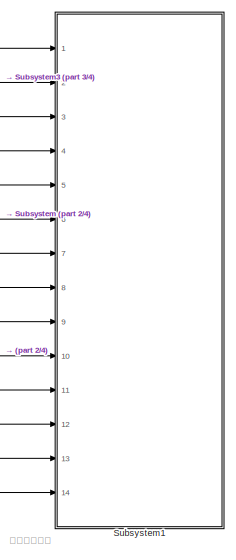
[diagram: root canvas - part 1/4, top right region]
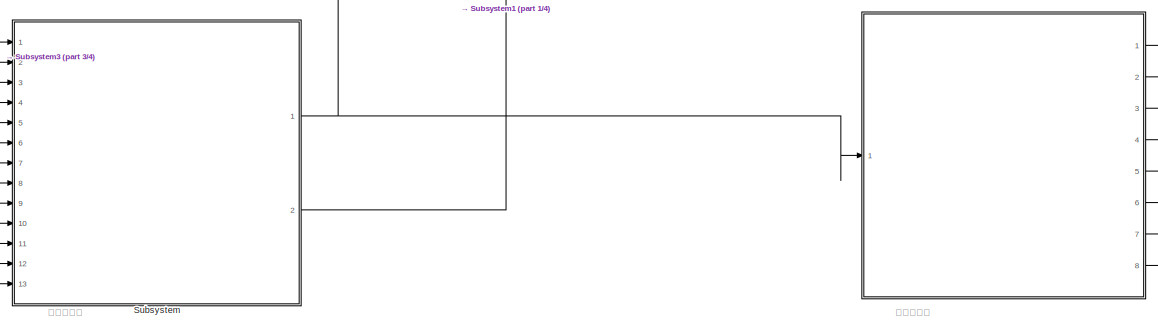
[diagram: root canvas - part 2/4, central region]
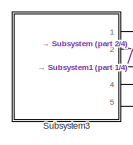
[diagram: root canvas - part 3/4, middle left region]
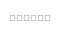
[diagram: root canvas - part 4/4, middle left region]
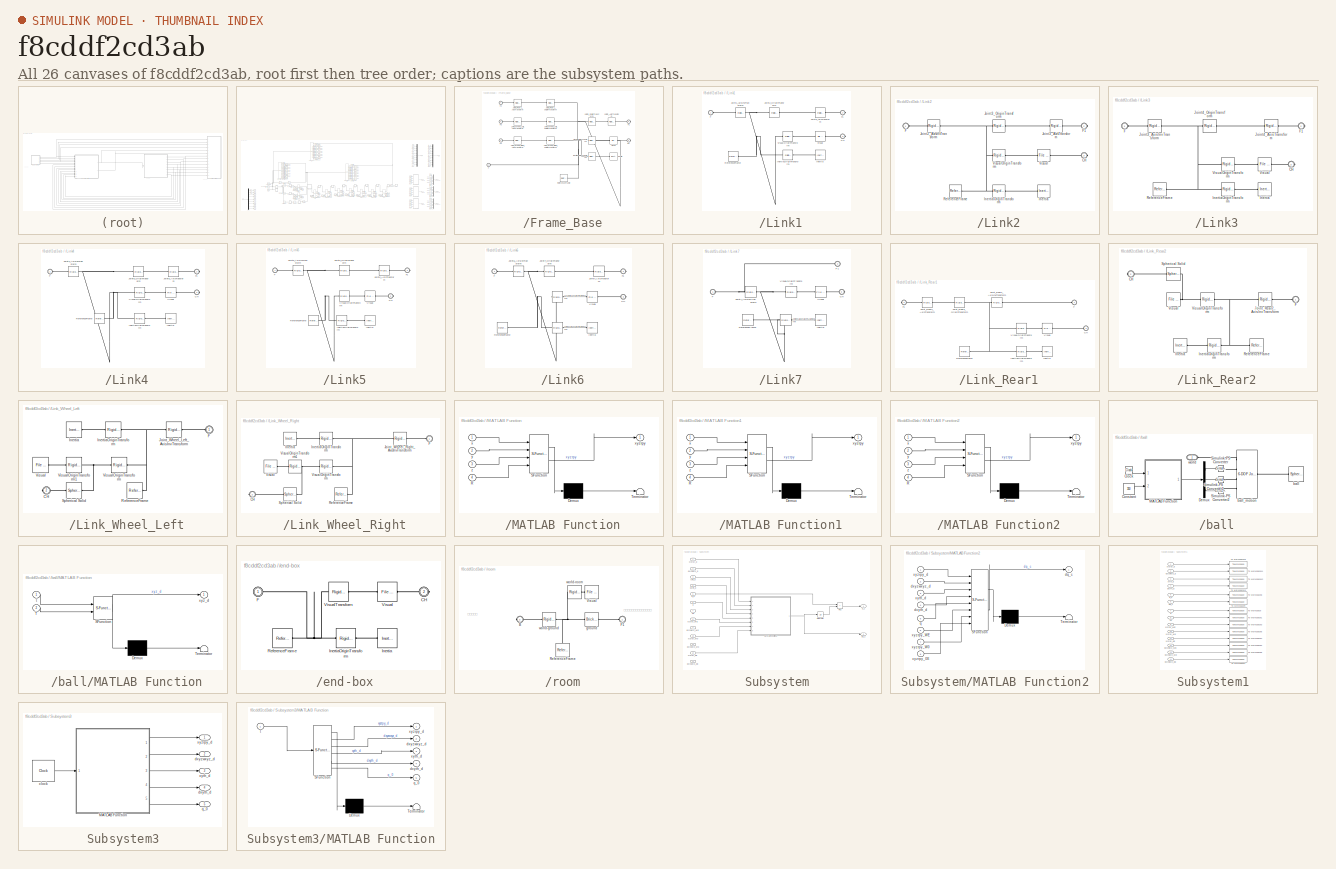
[diagram: thumbnail index - all 26 canvases of the model, root first then tree order]
MODEL slx_f8cddf2cd3ab
KIND model
CONFIG AbsTol = auto
CONFIG EnableMultiTasking = off
CONFIG FixedStep = 0.001
CONFIG MaxStep = auto
CONFIG MinStep = auto
CONFIG RelTol = 1e-3
CONFIG SampleTimeConstraint = Unconstrained
CONFIG SolverName = ode1be
CONFIG StartTime = 0.0
CONFIG StopTime = 350
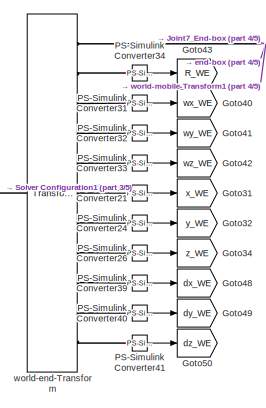
[diagram:   - part 1/5, top center region]
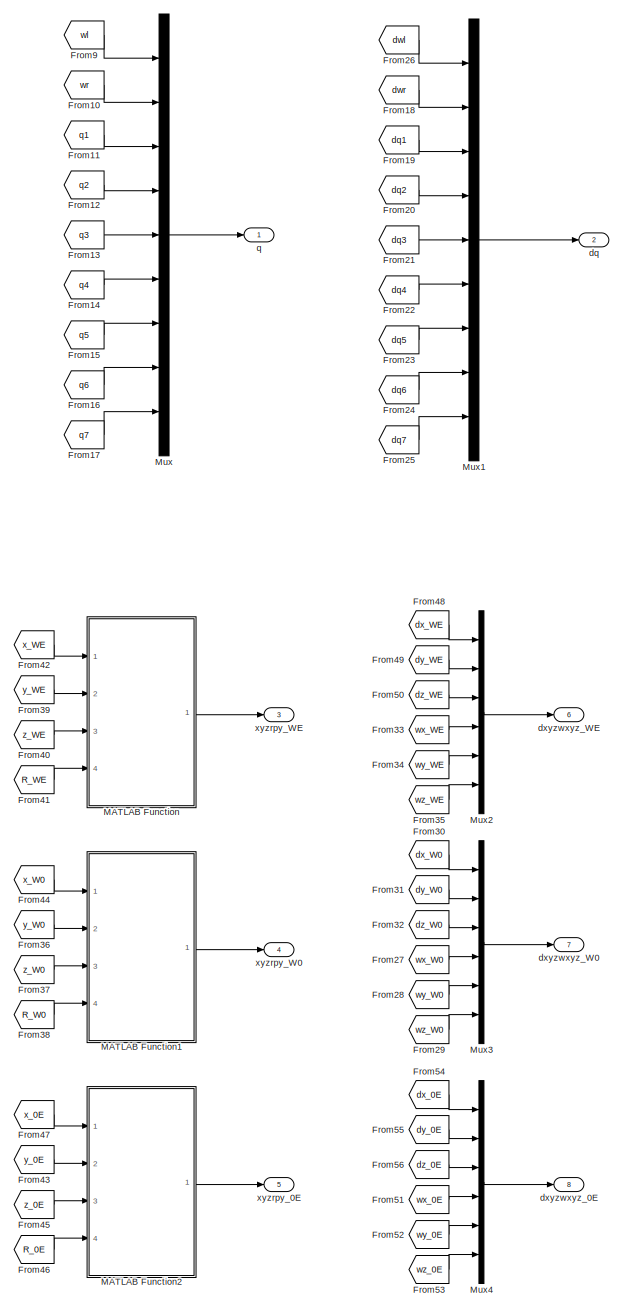
[diagram:   - part 2/5, right side, full height]
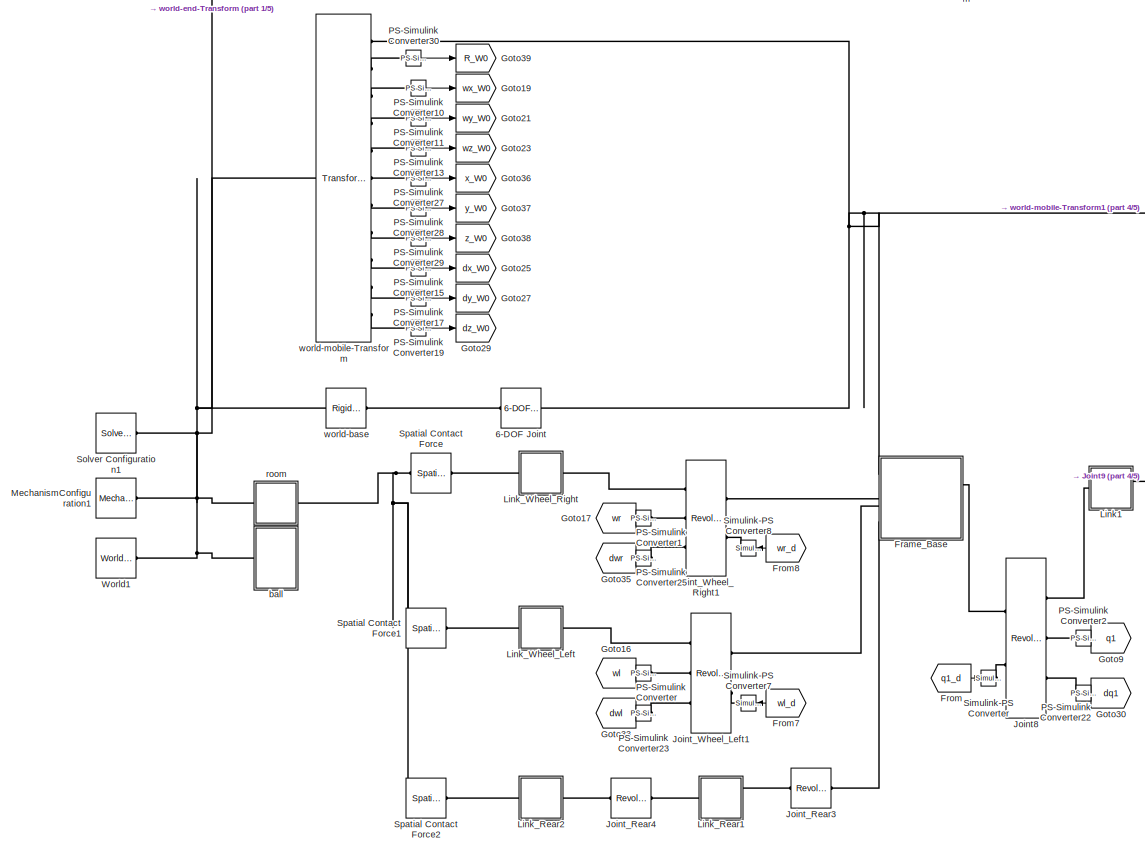
[diagram:   - part 3/5, middle left region]
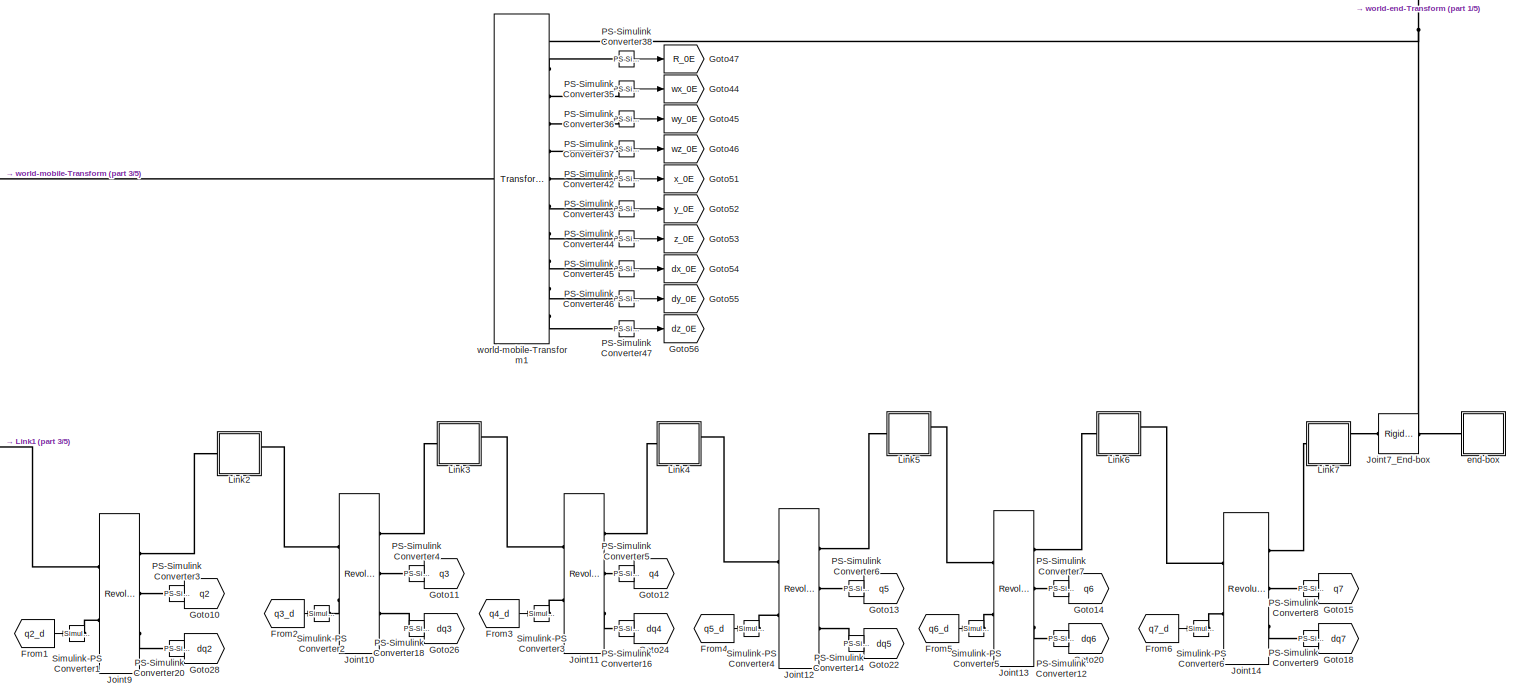
[diagram:   - part 4/5, central region]
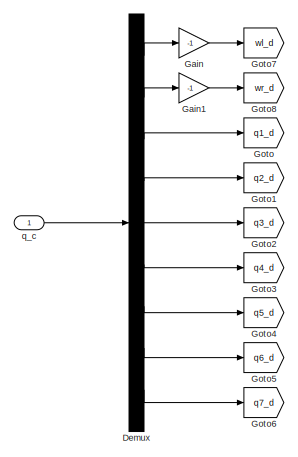
[diagram:   - part 5/5, bottom left region]
BLOCK [SubSystem]  
  Ports = [1, 8]
  RequestExecContextInheritance = off
BLOCK [Reference]  /6-DOF Joint  REF=sm_lib/Joints/6-DOF Joint
  Ports = [0, 0, 0, 0, 0, 1, 1]
  SourceBlock = sm_lib/Joints/6-DOF Joint
  SourceProductBaseCode = MS
  SourceType = 6-DOF Joint
BLOCK [Demux]  /Demux
  Outputs = 9
  Ports = [1, 9]
BLOCK [SubSystem]  /Frame_Base
  Ports = [0, 0, 0, 0, 0, 4, 2]
  RequestExecContextInheritance = off
BLOCK [PMIOPort]  /Frame_Base/CH
  Port = 6
  Side = Right
BLOCK [PMIOPort]  /Frame_Base/F
  Side = Left
BLOCK [PMIOPort]  /Frame_Base/F1
  Port = 5
  Side = Right
BLOCK [PMIOPort]  /Frame_Base/F2
  NameLocation = top
  Port = 4
  Side = Left
BLOCK [PMIOPort]  /Frame_Base/F3
  NameLocation = top
  Port = 3
  Side = Left
BLOCK [PMIOPort]  /Frame_Base/F4
  NameLocation = top
  Port = 2
  Side = Left
BLOCK [Reference]  /Frame_Base/Inertia  REF=sm_lib/Body Elements/Inertia
  NameLocation = top
  Ports = [0, 0, 0, 0, 0, 0, 1]
  SourceBlock = sm_lib/Body Elements/Inertia
  SourceProductBaseCode = MS
  SourceType = Inertia
BLOCK [Reference]  /Frame_Base/InertiaOriginTransform  REF=sm_lib/Frames and
Transforms/Rigid
Transform
  Ports = [0, 0, 0, 0, 0, 1, 1]
  SourceBlock = sm_lib/Frames and\nTransforms/Rigid\nTransform
  SourceProductBaseCode = MS
  SourceType = Rigid\nTransform
BLOCK [Reference]  /Frame_Base/Joint1_AxisTransform  REF=sm_lib/Frames and
Transforms/Rigid
Transform
  Ports = [0, 0, 0, 0, 0, 1, 1]
  SourceBlock = sm_lib/Frames and\nTransforms/Rigid\nTransform
  SourceProductBaseCode = MS
  SourceType = Rigid\nTransform
BLOCK [Reference]  /Frame_Base/Joint1_OriginTransform  REF=sm_lib/Frames and
Transforms/Rigid
Transform
  Ports = [0, 0, 0, 0, 0, 1, 1]
  SourceBlock = sm_lib/Frames and\nTransforms/Rigid\nTransform
  SourceProductBaseCode = MS
  SourceType = Rigid\nTransform
BLOCK [Reference]  /Frame_Base/Joint_Rear1_AxisTransform  REF=sm_lib/Frames and
Transforms/Rigid
Transform
  NameLocation = top
  Ports = [0, 0, 0, 0, 0, 1, 1]
  SourceBlock = sm_lib/Frames and\nTransforms/Rigid\nTransform
  SourceProductBaseCode = MS
  SourceType = Rigid\nTransform
BLOCK [Reference]  /Frame_Base/Joint_Rear1_OriginTransform  REF=sm_lib/Frames and
Transforms/Rigid
Transform
  NameLocation = top
  Ports = [0, 0, 0, 0, 0, 1, 1]
  SourceBlock = sm_lib/Frames and\nTransforms/Rigid\nTransform
  SourceProductBaseCode = MS
  SourceType = Rigid\nTransform
BLOCK [Reference]  /Frame_Base/Joint_Wheel_Left_AxisTransform  REF=sm_lib/Frames and
Transforms/Rigid
Transform
  NameLocation = top
  Ports = [0, 0, 0, 0, 0, 1, 1]
  SourceBlock = sm_lib/Frames and\nTransforms/Rigid\nTransform
  SourceProductBaseCode = MS
  SourceType = Rigid\nTransform
BLOCK [Reference]  /Frame_Base/Joint_Wheel_Left_OriginTransform  REF=sm_lib/Frames and
Transforms/Rigid
Transform
  NameLocation = top
  Ports = [0, 0, 0, 0, 0, 1, 1]
  SourceBlock = sm_lib/Frames and\nTransforms/Rigid\nTransform
  SourceProductBaseCode = MS
  SourceType = Rigid\nTransform
BLOCK [Reference]  /Frame_Base/Joint_Wheel_Right_AxisTransform  REF=sm_lib/Frames and
Transforms/Rigid
Transform
  NameLocation = top
  Ports = [0, 0, 0, 0, 0, 1, 1]
  SourceBlock = sm_lib/Frames and\nTransforms/Rigid\nTransform
  SourceProductBaseCode = MS
  SourceType = Rigid\nTransform
BLOCK [Reference]  /Frame_Base/Joint_Wheel_Right_OriginTransform  REF=sm_lib/Frames and
Transforms/Rigid
Transform
  NameLocation = top
  Ports = [0, 0, 0, 0, 0, 1, 1]
  SourceBlock = sm_lib/Frames and\nTransforms/Rigid\nTransform
  SourceProductBaseCode = MS
  SourceType = Rigid\nTransform
BLOCK [Reference]  /Frame_Base/ReferenceFrame  REF=sm_lib/Frames and
Transforms/Reference
Frame
  Ports = [0, 0, 0, 0, 0, 0, 1]
  SourceBlock = sm_lib/Frames and\nTransforms/Reference\nFrame
  SourceProductBaseCode = MS
  SourceType = Reference\nFrame
BLOCK [Reference]  /Frame_Base/Visual  REF=sm_lib/Body Elements/File Solid
  NameLocation = top
  Ports = [0, 0, 0, 0, 0, 1, 1]
  SourceBlock = sm_lib/Body Elements/File Solid
  SourceProductBaseCode = MS
  SourceType = File Solid
BLOCK [Reference]  /Frame_Base/VisualOriginTransform  REF=sm_lib/Frames and
Transforms/Rigid
Transform
  Ports = [0, 0, 0, 0, 0, 1, 1]
  SourceBlock = sm_lib/Frames and\nTransforms/Rigid\nTransform
  SourceProductBaseCode = MS
  SourceType = Rigid\nTransform
BLOCK [From]  /From
  GotoTag = q1_d
BLOCK [From]  /From1
  GotoTag = q2_d
BLOCK [From]  /From10
  GotoTag = wr
BLOCK [From]  /From11
  GotoTag = q1
BLOCK [From]  /From12
  GotoTag = q2
BLOCK [From]  /From13
  GotoTag = q3
BLOCK [From]  /From14
  GotoTag = q4
BLOCK [From]  /From15
  GotoTag = q5
BLOCK [From]  /From16
  GotoTag = q6
BLOCK [From]  /From17
  GotoTag = q7
BLOCK [From]  /From18
  GotoTag = dwr
BLOCK [From]  /From19
  GotoTag = dq1
BLOCK [From]  /From2
  GotoTag = q3_d
BLOCK [From]  /From20
  GotoTag = dq2
BLOCK [From]  /From21
  GotoTag = dq3
BLOCK [From]  /From22
  GotoTag = dq4
BLOCK [From]  /From23
  GotoTag = dq5
BLOCK [From]  /From24
  GotoTag = dq6
BLOCK [From]  /From25
  GotoTag = dq7
BLOCK [From]  /From26
  GotoTag = dwl
BLOCK [From]  /From27
  GotoTag = wx_W0
BLOCK [From]  /From28
  GotoTag = wy_W0
BLOCK [From]  /From29
  GotoTag = wz_W0
BLOCK [From]  /From3
  GotoTag = q4_d
BLOCK [From]  /From30
  GotoTag = dx_W0
BLOCK [From]  /From31
  GotoTag = dy_W0
BLOCK [From]  /From32
  GotoTag = dz_W0
BLOCK [From]  /From33
  GotoTag = wx_WE
BLOCK [From]  /From34
  GotoTag = wy_WE
BLOCK [From]  /From35
  GotoTag = wz_WE
BLOCK [From]  /From36
  GotoTag = y_W0
BLOCK [From]  /From37
  GotoTag = z_W0
BLOCK [From]  /From38
  GotoTag = R_W0
BLOCK [From]  /From39
  GotoTag = y_WE
BLOCK [From]  /From4
  GotoTag = q5_d
BLOCK [From]  /From40
  GotoTag = z_WE
BLOCK [From]  /From41
  GotoTag = R_WE
BLOCK [From]  /From42
  GotoTag = x_WE
BLOCK [From]  /From43
  GotoTag = y_0E
BLOCK [From]  /From44
  GotoTag = x_W0
BLOCK [From]  /From45
  GotoTag = z_0E
BLOCK [From]  /From46
  GotoTag = R_0E
BLOCK [From]  /From47
  GotoTag = x_0E
BLOCK [From]  /From48
  GotoTag = dx_WE
BLOCK [From]  /From49
  GotoTag = dy_WE
BLOCK [From]  /From5
  GotoTag = q6_d
BLOCK [From]  /From50
  GotoTag = dz_WE
BLOCK [From]  /From51
  GotoTag = wx_0E
BLOCK [From]  /From52
  GotoTag = wy_0E
BLOCK [From]  /From53
  GotoTag = wz_0E
BLOCK [From]  /From54
  GotoTag = dx_0E
BLOCK [From]  /From55
  GotoTag = dy_0E
BLOCK [From]  /From56
  GotoTag = dz_0E
BLOCK [From]  /From6
  GotoTag = q7_d
BLOCK [From]  /From7
  GotoTag = wl_d
  NameLocation = top
BLOCK [From]  /From8
  GotoTag = wr_d
  NameLocation = top
BLOCK [From]  /From9
  GotoTag = wl
BLOCK [Gain]  /Gain
  Gain = -1
BLOCK [Gain]  /Gain1
  Gain = -1
BLOCK [Goto]  /Goto
  GotoTag = q1_d
BLOCK [Goto]  /Goto1
  GotoTag = q2_d
BLOCK [Goto]  /Goto10
  GotoTag = q2
BLOCK [Goto]  /Goto11
  GotoTag = q3
BLOCK [Goto]  /Goto12
  GotoTag = q4
BLOCK [Goto]  /Goto13
  GotoTag = q5
BLOCK [Goto]  /Goto14
  GotoTag = q6
BLOCK [Goto]  /Goto15
  GotoTag = q7
BLOCK [Goto]  /Goto16
  GotoTag = wl
  NameLocation = top
BLOCK [Goto]  /Goto17
  GotoTag = wr
  NameLocation = top
BLOCK [Goto]  /Goto18
  GotoTag = dq7
BLOCK [Goto]  /Goto19
  GotoTag = wx_W0
BLOCK [Goto]  /Goto2
  GotoTag = q3_d
BLOCK [Goto]  /Goto20
  GotoTag = dq6
BLOCK [Goto]  /Goto21
  GotoTag = wy_W0
BLOCK [Goto]  /Goto22
  GotoTag = dq5
BLOCK [Goto]  /Goto23
  GotoTag = wz_W0
BLOCK [Goto]  /Goto24
  GotoTag = dq4
BLOCK [Goto]  /Goto25
  GotoTag = dx_W0
BLOCK [Goto]  /Goto26
  GotoTag = dq3
BLOCK [Goto]  /Goto27
  GotoTag = dy_W0
BLOCK [Goto]  /Goto28
  GotoTag = dq2
BLOCK [Goto]  /Goto29
  GotoTag = dz_W0
BLOCK [Goto]  /Goto3
  GotoTag = q4_d
BLOCK [Goto]  /Goto30
  GotoTag = dq1
BLOCK [Goto]  /Goto31
  GotoTag = x_WE
BLOCK [Goto]  /Goto32
  GotoTag = y_WE
BLOCK [Goto]  /Goto33
  GotoTag = dwl
  NameLocation = top
BLOCK [Goto]  /Goto34
  GotoTag = z_WE
BLOCK [Goto]  /Goto35
  GotoTag = dwr
  NameLocation = top
BLOCK [Goto]  /Goto36
  GotoTag = x_W0
BLOCK [Goto]  /Goto37
  GotoTag = y_W0
BLOCK [Goto]  /Goto38
  GotoTag = z_W0
BLOCK [Goto]  /Goto39
  GotoTag = R_W0
BLOCK [Goto]  /Goto4
  GotoTag = q5_d
BLOCK [Goto]  /Goto40
  GotoTag = wx_WE
BLOCK [Goto]  /Goto41
  GotoTag = wy_WE
BLOCK [Goto]  /Goto42
  GotoTag = wz_WE
BLOCK [Goto]  /Goto43
  GotoTag = R_WE
BLOCK [Goto]  /Goto44
  GotoTag = wx_0E
BLOCK [Goto]  /Goto45
  GotoTag = wy_0E
BLOCK [Goto]  /Goto46
  GotoTag = wz_0E
BLOCK [Goto]  /Goto47
  GotoTag = R_0E
BLOCK [Goto]  /Goto48
  GotoTag = dx_WE
BLOCK [Goto]  /Goto49
  GotoTag = dy_WE
BLOCK [Goto]  /Goto5
  GotoTag = q6_d
BLOCK [Goto]  /Goto50
  GotoTag = dz_WE
BLOCK [Goto]  /Goto51
  GotoTag = x_0E
BLOCK [Goto]  /Goto52
  GotoTag = y_0E
BLOCK [Goto]  /Goto53
  GotoTag = z_0E
BLOCK [Goto]  /Goto54
  GotoTag = dx_0E
BLOCK [Goto]  /Goto55
  GotoTag = dy_0E
BLOCK [Goto]  /Goto56
  GotoTag = dz_0E
BLOCK [Goto]  /Goto6
  GotoTag = q7_d
BLOCK [Goto]  /Goto7
  GotoTag = wl_d
BLOCK [Goto]  /Goto8
  GotoTag = wr_d
BLOCK [Goto]  /Goto9
  GotoTag = q1
BLOCK [Reference]  /Joint10  REF=sm_lib/Joints/Revolute Joint
  Ports = [0, 0, 0, 0, 0, 2, 3]
  SourceBlock = sm_lib/Joints/Revolute Joint
  SourceProductBaseCode = MS
  SourceType = Revolute Joint
BLOCK [Reference]  /Joint11  REF=sm_lib/Joints/Revolute Joint
  Ports = [0, 0, 0, 0, 0, 2, 3]
  SourceBlock = sm_lib/Joints/Revolute Joint
  SourceProductBaseCode = MS
  SourceType = Revolute Joint
BLOCK [Reference]  /Joint12  REF=sm_lib/Joints/Revolute Joint
  Ports = [0, 0, 0, 0, 0, 2, 3]
  SourceBlock = sm_lib/Joints/Revolute Joint
  SourceProductBaseCode = MS
  SourceType = Revolute Joint
BLOCK [Reference]  /Joint13  REF=sm_lib/Joints/Revolute Joint
  Ports = [0, 0, 0, 0, 0, 2, 3]
  SourceBlock = sm_lib/Joints/Revolute Joint
  SourceProductBaseCode = MS
  SourceType = Revolute Joint
BLOCK [Reference]  /Joint14  REF=sm_lib/Joints/Revolute Joint
  Ports = [0, 0, 0, 0, 0, 2, 3]
  SourceBlock = sm_lib/Joints/Revolute Joint
  SourceProductBaseCode = MS
  SourceType = Revolute Joint
BLOCK [Reference]  /Joint7_End-box  REF=sm_lib/Frames and
Transforms/Rigid
Transform
  Ports = [0, 0, 0, 0, 0, 1, 1]
  SourceBlock = sm_lib/Frames and\nTransforms/Rigid\nTransform
  SourceProductBaseCode = MS
  SourceType = Rigid\nTransform
BLOCK [Reference]  /Joint8  REF=sm_lib/Joints/Revolute Joint
  Ports = [0, 0, 0, 0, 0, 2, 3]
  SourceBlock = sm_lib/Joints/Revolute Joint
  SourceProductBaseCode = MS
  SourceType = Revolute Joint
BLOCK [Reference]  /Joint9  REF=sm_lib/Joints/Revolute Joint
  Ports = [0, 0, 0, 0, 0, 2, 3]
  SourceBlock = sm_lib/Joints/Revolute Joint
  SourceProductBaseCode = MS
  SourceType = Revolute Joint
BLOCK [Reference]  /Joint_Rear3  REF=sm_lib/Joints/Revolute Joint
  NameLocation = top
  Ports = [0, 0, 0, 0, 0, 1, 1]
  SourceBlock = sm_lib/Joints/Revolute Joint
  SourceProductBaseCode = MS
  SourceType = Revolute Joint
BLOCK [Reference]  /Joint_Rear4  REF=sm_lib/Joints/Revolute Joint
  NameLocation = top
  Ports = [0, 0, 0, 0, 0, 1, 1]
  SourceBlock = sm_lib/Joints/Revolute Joint
  SourceProductBaseCode = MS
  SourceType = Revolute Joint
BLOCK [Reference]  /Joint_Wheel_Left1  REF=sm_lib/Joints/Revolute Joint
  NameLocation = top
  Ports = [0, 0, 0, 0, 0, 2, 3]
  SourceBlock = sm_lib/Joints/Revolute Joint
  SourceProductBaseCode = MS
  SourceType = Revolute Joint
BLOCK [Reference]  /Joint_Wheel_Right1  REF=sm_lib/Joints/Revolute Joint
  NameLocation = top
  Ports = [0, 0, 0, 0, 0, 2, 3]
  SourceBlock = sm_lib/Joints/Revolute Joint
  SourceProductBaseCode = MS
  SourceType = Revolute Joint
BLOCK [SubSystem]  /Link1
  Ports = [0, 0, 0, 0, 0, 1, 2]
  RequestExecContextInheritance = off
BLOCK [PMIOPort]  /Link1/CH
  Port = 3
  Side = Right
BLOCK [PMIOPort]  /Link1/F
  NameLocation = top
  Side = Left
BLOCK [PMIOPort]  /Link1/F1
  Port = 2
  Side = Right
BLOCK [Reference]  /Link1/Inertia  REF=sm_lib/Body Elements/Inertia
  NameLocation = top
  Ports = [0, 0, 0, 0, 0, 0, 1]
  SourceBlock = sm_lib/Body Elements/Inertia
  SourceProductBaseCode = MS
  SourceType = Inertia
BLOCK [Reference]  /Link1/InertiaOriginTransform  REF=sm_lib/Frames and
Transforms/Rigid
Transform
  Ports = [0, 0, 0, 0, 0, 1, 1]
  SourceBlock = sm_lib/Frames and\nTransforms/Rigid\nTransform
  SourceProductBaseCode = MS
  SourceType = Rigid\nTransform
BLOCK [Reference]  /Link1/Joint1_AxisInvTransform  REF=sm_lib/Frames and
Transforms/Rigid
Transform
  NameLocation = top
  Ports = [0, 0, 0, 0, 0, 1, 1]
  SourceBlock = sm_lib/Frames and\nTransforms/Rigid\nTransform
  SourceProductBaseCode = MS
  SourceType = Rigid\nTransform
BLOCK [Reference]  /Link1/Joint2_AxisTransform  REF=sm_lib/Frames and
Transforms/Rigid
Transform
  Ports = [0, 0, 0, 0, 0, 1, 1]
  SourceBlock = sm_lib/Frames and\nTransforms/Rigid\nTransform
  SourceProductBaseCode = MS
  SourceType = Rigid\nTransform
BLOCK [Reference]  /Link1/Joint2_OriginTransform  REF=sm_lib/Frames and
Transforms/Rigid
Transform
  Ports = [0, 0, 0, 0, 0, 1, 1]
  SourceBlock = sm_lib/Frames and\nTransforms/Rigid\nTransform
  SourceProductBaseCode = MS
  SourceType = Rigid\nTransform
BLOCK [Reference]  /Link1/ReferenceFrame  REF=sm_lib/Frames and
Transforms/Reference
Frame
  Ports = [0, 0, 0, 0, 0, 0, 1]
  SourceBlock = sm_lib/Frames and\nTransforms/Reference\nFrame
  SourceProductBaseCode = MS
  SourceType = Reference\nFrame
BLOCK [Reference]  /Link1/Visual  REF=sm_lib/Body Elements/File Solid
  NameLocation = top
  Ports = [0, 0, 0, 0, 0, 1, 1]
  SourceBlock = sm_lib/Body Elements/File Solid
  SourceProductBaseCode = MS
  SourceType = File Solid
BLOCK [Reference]  /Link1/VisualOriginTransform  REF=sm_lib/Frames and
Transforms/Rigid
Transform
  Ports = [0, 0, 0, 0, 0, 1, 1]
  SourceBlock = sm_lib/Frames and\nTransforms/Rigid\nTransform
  SourceProductBaseCode = MS
  SourceType = Rigid\nTransform
BLOCK [SubSystem]  /Link2
  Ports = [0, 0, 0, 0, 0, 1, 2]
  RequestExecContextInheritance = off
BLOCK [PMIOPort]  /Link2/CH
  Port = 3
  Side = Right
BLOCK [PMIOPort]  /Link2/F
  NameLocation = top
  Side = Left
BLOCK [PMIOPort]  /Link2/F1
  Port = 2
  Side = Right
BLOCK [Reference]  /Link2/Inertia  REF=sm_lib/Body Elements/Inertia
  NameLocation = top
  Ports = [0, 0, 0, 0, 0, 0, 1]
  SourceBlock = sm_lib/Body Elements/Inertia
  SourceProductBaseCode = MS
  SourceType = Inertia
BLOCK [Reference]  /Link2/InertiaOriginTransform  REF=sm_lib/Frames and
Transforms/Rigid
Transform
  Ports = [0, 0, 0, 0, 0, 1, 1]
  SourceBlock = sm_lib/Frames and\nTransforms/Rigid\nTransform
  SourceProductBaseCode = MS
  SourceType = Rigid\nTransform
BLOCK [Reference]  /Link2/Joint2_AxisInvTransform  REF=sm_lib/Frames and
Transforms/Rigid
Transform
  NameLocation = top
  Ports = [0, 0, 0, 0, 0, 1, 1]
  SourceBlock = sm_lib/Frames and\nTransforms/Rigid\nTransform
  SourceProductBaseCode = MS
  SourceType = Rigid\nTransform
BLOCK [Reference]  /Link2/Joint3_AxisTransform  REF=sm_lib/Frames and
Transforms/Rigid
Transform
  Ports = [0, 0, 0, 0, 0, 1, 1]
  SourceBlock = sm_lib/Frames and\nTransforms/Rigid\nTransform
  SourceProductBaseCode = MS
  SourceType = Rigid\nTransform
BLOCK [Reference]  /Link2/Joint3_OriginTransform  REF=sm_lib/Frames and
Transforms/Rigid
Transform
  Ports = [0, 0, 0, 0, 0, 1, 1]
  SourceBlock = sm_lib/Frames and\nTransforms/Rigid\nTransform
  SourceProductBaseCode = MS
  SourceType = Rigid\nTransform
BLOCK [Reference]  /Link2/ReferenceFrame  REF=sm_lib/Frames and
Transforms/Reference
Frame
  Ports = [0, 0, 0, 0, 0, 0, 1]
  SourceBlock = sm_lib/Frames and\nTransforms/Reference\nFrame
  SourceProductBaseCode = MS
  SourceType = Reference\nFrame
BLOCK [Reference]  /Link2/Visual  REF=sm_lib/Body Elements/File Solid
  NameLocation = top
  Ports = [0, 0, 0, 0, 0, 1, 1]
  SourceBlock = sm_lib/Body Elements/File Solid
  SourceProductBaseCode = MS
  SourceType = File Solid
BLOCK [Reference]  /Link2/VisualOriginTransform  REF=sm_lib/Frames and
Transforms/Rigid
Transform
  Ports = [0, 0, 0, 0, 0, 1, 1]
  SourceBlock = sm_lib/Frames and\nTransforms/Rigid\nTransform
  SourceProductBaseCode = MS
  SourceType = Rigid\nTransform
BLOCK [SubSystem]  /Link3
  Ports = [0, 0, 0, 0, 0, 1, 2]
  RequestExecContextInheritance = off
BLOCK [PMIOPort]  /Link3/CH
  Port = 3
  Side = Right
BLOCK [PMIOPort]  /Link3/F
  NameLocation = top
  Side = Left
BLOCK [PMIOPort]  /Link3/F1
  Port = 2
  Side = Right
BLOCK [Reference]  /Link3/Inertia  REF=sm_lib/Body Elements/Inertia
  NameLocation = top
  Ports = [0, 0, 0, 0, 0, 0, 1]
  SourceBlock = sm_lib/Body Elements/Inertia
  SourceProductBaseCode = MS
  SourceType = Inertia
BLOCK [Reference]  /Link3/InertiaOriginTransform  REF=sm_lib/Frames and
Transforms/Rigid
Transform
  Ports = [0, 0, 0, 0, 0, 1, 1]
  SourceBlock = sm_lib/Frames and\nTransforms/Rigid\nTransform
  SourceProductBaseCode = MS
  SourceType = Rigid\nTransform
BLOCK [Reference]  /Link3/Joint3_AxisInvTransform  REF=sm_lib/Frames and
Transforms/Rigid
Transform
  NameLocation = top
  Ports = [0, 0, 0, 0, 0, 1, 1]
  SourceBlock = sm_lib/Frames and\nTransforms/Rigid\nTransform
  SourceProductBaseCode = MS
  SourceType = Rigid\nTransform
BLOCK [Reference]  /Link3/Joint4_AxisTransform  REF=sm_lib/Frames and
Transforms/Rigid
Transform
  Ports = [0, 0, 0, 0, 0, 1, 1]
  SourceBlock = sm_lib/Frames and\nTransforms/Rigid\nTransform
  SourceProductBaseCode = MS
  SourceType = Rigid\nTransform
BLOCK [Reference]  /Link3/Joint4_OriginTransform  REF=sm_lib/Frames and
Transforms/Rigid
Transform
  Ports = [0, 0, 0, 0, 0, 1, 1]
  SourceBlock = sm_lib/Frames and\nTransforms/Rigid\nTransform
  SourceProductBaseCode = MS
  SourceType = Rigid\nTransform
BLOCK [Reference]  /Link3/ReferenceFrame  REF=sm_lib/Frames and
Transforms/Reference
Frame
  Ports = [0, 0, 0, 0, 0, 0, 1]
  SourceBlock = sm_lib/Frames and\nTransforms/Reference\nFrame
  SourceProductBaseCode = MS
  SourceType = Reference\nFrame
BLOCK [Reference]  /Link3/Visual  REF=sm_lib/Body Elements/File Solid
  NameLocation = top
  Ports = [0, 0, 0, 0, 0, 1, 1]
  SourceBlock = sm_lib/Body Elements/File Solid
  SourceProductBaseCode = MS
  SourceType = File Solid
BLOCK [Reference]  /Link3/VisualOriginTransform  REF=sm_lib/Frames and
Transforms/Rigid
Transform
  Ports = [0, 0, 0, 0, 0, 1, 1]
  SourceBlock = sm_lib/Frames and\nTransforms/Rigid\nTransform
  SourceProductBaseCode = MS
  SourceType = Rigid\nTransform
BLOCK [SubSystem]  /Link4
  Ports = [0, 0, 0, 0, 0, 1, 2]
  RequestExecContextInheritance = off
BLOCK [PMIOPort]  /Link4/CH
  Port = 3
  Side = Right
BLOCK [PMIOPort]  /Link4/F
  NameLocation = top
  Side = Left
BLOCK [PMIOPort]  /Link4/F1
  Port = 2
  Side = Right
BLOCK [Reference]  /Link4/Inertia  REF=sm_lib/Body Elements/Inertia
  NameLocation = top
  Ports = [0, 0, 0, 0, 0, 0, 1]
  SourceBlock = sm_lib/Body Elements/Inertia
  SourceProductBaseCode = MS
  SourceType = Inertia
BLOCK [Reference]  /Link4/InertiaOriginTransform  REF=sm_lib/Frames and
Transforms/Rigid
Transform
  Ports = [0, 0, 0, 0, 0, 1, 1]
  SourceBlock = sm_lib/Frames and\nTransforms/Rigid\nTransform
  SourceProductBaseCode = MS
  SourceType = Rigid\nTransform
BLOCK [Reference]  /Link4/Joint4_AxisInvTransform  REF=sm_lib/Frames and
Transforms/Rigid
Transform
  NameLocation = top
  Ports = [0, 0, 0, 0, 0, 1, 1]
  SourceBlock = sm_lib/Frames and\nTransforms/Rigid\nTransform
  SourceProductBaseCode = MS
  SourceType = Rigid\nTransform
BLOCK [Reference]  /Link4/Joint5_AxisTransform  REF=sm_lib/Frames and
Transforms/Rigid
Transform
  Ports = [0, 0, 0, 0, 0, 1, 1]
  SourceBlock = sm_lib/Frames and\nTransforms/Rigid\nTransform
  SourceProductBaseCode = MS
  SourceType = Rigid\nTransform
BLOCK [Reference]  /Link4/Joint5_OriginTransform  REF=sm_lib/Frames and
Transforms/Rigid
Transform
  Ports = [0, 0, 0, 0, 0, 1, 1]
  SourceBlock = sm_lib/Frames and\nTransforms/Rigid\nTransform
  SourceProductBaseCode = MS
  SourceType = Rigid\nTransform
BLOCK [Reference]  /Link4/ReferenceFrame  REF=sm_lib/Frames and
Transforms/Reference
Frame
  Ports = [0, 0, 0, 0, 0, 0, 1]
  SourceBlock = sm_lib/Frames and\nTransforms/Reference\nFrame
  SourceProductBaseCode = MS
  SourceType = Reference\nFrame
BLOCK [Reference]  /Link4/Visual  REF=sm_lib/Body Elements/File Solid
  NameLocation = top
  Ports = [0, 0, 0, 0, 0, 1, 1]
  SourceBlock = sm_lib/Body Elements/File Solid
  SourceProductBaseCode = MS
  SourceType = File Solid
BLOCK [Reference]  /Link4/VisualOriginTransform  REF=sm_lib/Frames and
Transforms/Rigid
Transform
  Ports = [0, 0, 0, 0, 0, 1, 1]
  SourceBlock = sm_lib/Frames and\nTransforms/Rigid\nTransform
  SourceProductBaseCode = MS
  SourceType = Rigid\nTransform
BLOCK [SubSystem]  /Link5
  Ports = [0, 0, 0, 0, 0, 1, 2]
  RequestExecContextInheritance = off
BLOCK [PMIOPort]  /Link5/CH
  Port = 3
  Side = Right
BLOCK [PMIOPort]  /Link5/F
  NameLocation = top
  Side = Left
BLOCK [PMIOPort]  /Link5/F1
  Port = 2
  Side = Right
BLOCK [Reference]  /Link5/Inertia  REF=sm_lib/Body Elements/Inertia
  NameLocation = top
  Ports = [0, 0, 0, 0, 0, 0, 1]
  SourceBlock = sm_lib/Body Elements/Inertia
  SourceProductBaseCode = MS
  SourceType = Inertia
BLOCK [Reference]  /Link5/InertiaOriginTransform  REF=sm_lib/Frames and
Transforms/Rigid
Transform
  Ports = [0, 0, 0, 0, 0, 1, 1]
  SourceBlock = sm_lib/Frames and\nTransforms/Rigid\nTransform
  SourceProductBaseCode = MS
  SourceType = Rigid\nTransform
BLOCK [Reference]  /Link5/Joint5_AxisInvTransform  REF=sm_lib/Frames and
Transforms/Rigid
Transform
  NameLocation = top
  Ports = [0, 0, 0, 0, 0, 1, 1]
  SourceBlock = sm_lib/Frames and\nTransforms/Rigid\nTransform
  SourceProductBaseCode = MS
  SourceType = Rigid\nTransform
BLOCK [Reference]  /Link5/Joint6_AxisTransform  REF=sm_lib/Frames and
Transforms/Rigid
Transform
  Ports = [0, 0, 0, 0, 0, 1, 1]
  SourceBlock = sm_lib/Frames and\nTransforms/Rigid\nTransform
  SourceProductBaseCode = MS
  SourceType = Rigid\nTransform
BLOCK [Reference]  /Link5/Joint6_OriginTransform  REF=sm_lib/Frames and
Transforms/Rigid
Transform
  Ports = [0, 0, 0, 0, 0, 1, 1]
  SourceBlock = sm_lib/Frames and\nTransforms/Rigid\nTransform
  SourceProductBaseCode = MS
  SourceType = Rigid\nTransform
BLOCK [Reference]  /Link5/ReferenceFrame  REF=sm_lib/Frames and
Transforms/Reference
Frame
  Ports = [0, 0, 0, 0, 0, 0, 1]
  SourceBlock = sm_lib/Frames and\nTransforms/Reference\nFrame
  SourceProductBaseCode = MS
  SourceType = Reference\nFrame
BLOCK [Reference]  /Link5/Visual  REF=sm_lib/Body Elements/File Solid
  NameLocation = top
  Ports = [0, 0, 0, 0, 0, 1, 1]
  SourceBlock = sm_lib/Body Elements/File Solid
  SourceProductBaseCode = MS
  SourceType = File Solid
BLOCK [Reference]  /Link5/VisualOriginTransform  REF=sm_lib/Frames and
Transforms/Rigid
Transform
  Ports = [0, 0, 0, 0, 0, 1, 1]
  SourceBlock = sm_lib/Frames and\nTransforms/Rigid\nTransform
  SourceProductBaseCode = MS
  SourceType = Rigid\nTransform
BLOCK [SubSystem]  /Link6
  Ports = [0, 0, 0, 0, 0, 1, 2]
  RequestExecContextInheritance = off
BLOCK [PMIOPort]  /Link6/CH
  Port = 3
  Side = Right
BLOCK [PMIOPort]  /Link6/F
  NameLocation = top
  Side = Left
BLOCK [PMIOPort]  /Link6/F1
  Port = 2
  Side = Right
BLOCK [Reference]  /Link6/Inertia  REF=sm_lib/Body Elements/Inertia
  NameLocation = top
  Ports = [0, 0, 0, 0, 0, 0, 1]
  SourceBlock = sm_lib/Body Elements/Inertia
  SourceProductBaseCode = MS
  SourceType = Inertia
BLOCK [Reference]  /Link6/InertiaOriginTransform  REF=sm_lib/Frames and
Transforms/Rigid
Transform
  Ports = [0, 0, 0, 0, 0, 1, 1]
  SourceBlock = sm_lib/Frames and\nTransforms/Rigid\nTransform
  SourceProductBaseCode = MS
  SourceType = Rigid\nTransform
BLOCK [Reference]  /Link6/Joint6_AxisInvTransform  REF=sm_lib/Frames and
Transforms/Rigid
Transform
  NameLocation = top
  Ports = [0, 0, 0, 0, 0, 1, 1]
  SourceBlock = sm_lib/Frames and\nTransforms/Rigid\nTransform
  SourceProductBaseCode = MS
  SourceType = Rigid\nTransform
BLOCK [Reference]  /Link6/Joint7_AxisTransform  REF=sm_lib/Frames and
Transforms/Rigid
Transform
  Ports = [0, 0, 0, 0, 0, 1, 1]
  SourceBlock = sm_lib/Frames and\nTransforms/Rigid\nTransform
  SourceProductBaseCode = MS
  SourceType = Rigid\nTransform
BLOCK [Reference]  /Link6/Joint7_OriginTransform  REF=sm_lib/Frames and
Transforms/Rigid
Transform
  Ports = [0, 0, 0, 0, 0, 1, 1]
  SourceBlock = sm_lib/Frames and\nTransforms/Rigid\nTransform
  SourceProductBaseCode = MS
  SourceType = Rigid\nTransform
BLOCK [Reference]  /Link6/ReferenceFrame  REF=sm_lib/Frames and
Transforms/Reference
Frame
  Ports = [0, 0, 0, 0, 0, 0, 1]
  SourceBlock = sm_lib/Frames and\nTransforms/Reference\nFrame
  SourceProductBaseCode = MS
  SourceType = Reference\nFrame
BLOCK [Reference]  /Link6/Visual  REF=sm_lib/Body Elements/File Solid
  NameLocation = top
  Ports = [0, 0, 0, 0, 0, 1, 1]
  SourceBlock = sm_lib/Body Elements/File Solid
  SourceProductBaseCode = MS
  SourceType = File Solid
BLOCK [Reference]  /Link6/VisualOriginTransform  REF=sm_lib/Frames and
Transforms/Rigid
Transform
  Ports = [0, 0, 0, 0, 0, 1, 1]
  SourceBlock = sm_lib/Frames and\nTransforms/Rigid\nTransform
  SourceProductBaseCode = MS
  SourceType = Rigid\nTransform
BLOCK [SubSystem]  /Link7
  Ports = [0, 0, 0, 0, 0, 1, 2]
  RequestExecContextInheritance = off
BLOCK [PMIOPort]  /Link7/CH
  Port = 3
  Side = Right
BLOCK [PMIOPort]  /Link7/F
  NameLocation = top
  Side = Left
BLOCK [PMIOPort]  /Link7/F1
  Port = 2
  Side = Right
BLOCK [Reference]  /Link7/Inertia  REF=sm_lib/Body Elements/Inertia
  NameLocation = top
  Ports = [0, 0, 0, 0, 0, 0, 1]
  SourceBlock = sm_lib/Body Elements/Inertia
  SourceProductBaseCode = MS
  SourceType = Inertia
BLOCK [Reference]  /Link7/InertiaOriginTransform  REF=sm_lib/Frames and
Transforms/Rigid
Transform
  Ports = [0, 0, 0, 0, 0, 1, 1]
  SourceBlock = sm_lib/Frames and\nTransforms/Rigid\nTransform
  SourceProductBaseCode = MS
  SourceType = Rigid\nTransform
BLOCK [Reference]  /Link7/Joint7_AxisInvTransform  REF=sm_lib/Frames and
Transforms/Rigid
Transform
  NameLocation = top
  Ports = [0, 0, 0, 0, 0, 1, 1]
  SourceBlock = sm_lib/Frames and\nTransforms/Rigid\nTransform
  SourceProductBaseCode = MS
  SourceType = Rigid\nTransform
BLOCK [Reference]  /Link7/ReferenceFrame  REF=sm_lib/Frames and
Transforms/Reference
Frame
  Ports = [0, 0, 0, 0, 0, 0, 1]
  SourceBlock = sm_lib/Frames and\nTransforms/Reference\nFrame
  SourceProductBaseCode = MS
  SourceType = Reference\nFrame
BLOCK [Reference]  /Link7/Visual  REF=sm_lib/Body Elements/File Solid
  NameLocation = top
  Ports = [0, 0, 0, 0, 0, 1, 1]
  SourceBlock = sm_lib/Body Elements/File Solid
  SourceProductBaseCode = MS
  SourceType = File Solid
BLOCK [Reference]  /Link7/VisualOriginTransform  REF=sm_lib/Frames and
Transforms/Rigid
Transform
  Ports = [0, 0, 0, 0, 0, 1, 1]
  SourceBlock = sm_lib/Frames and\nTransforms/Rigid\nTransform
  SourceProductBaseCode = MS
  SourceType = Rigid\nTransform
BLOCK [SubSystem]  /Link_Rear1
  NameLocation = top
  Ports = [0, 0, 0, 0, 0, 2, 1]
  RequestExecContextInheritance = off
BLOCK [PMIOPort]  /Link_Rear1/CH
  Port = 3
  Side = Left
BLOCK [PMIOPort]  /Link_Rear1/F
  Side = Left
BLOCK [PMIOPort]  /Link_Rear1/F1
  NameLocation = top
  Port = 2
  Side = Right
BLOCK [Reference]  /Link_Rear1/Inertia  REF=sm_lib/Body Elements/Inertia
  NameLocation = top
  Ports = [0, 0, 0, 0, 0, 0, 1]
  SourceBlock = sm_lib/Body Elements/Inertia
  SourceProductBaseCode = MS
  SourceType = Inertia
BLOCK [Reference]  /Link_Rear1/InertiaOriginTransform  REF=sm_lib/Frames and
Transforms/Rigid
Transform
  Ports = [0, 0, 0, 0, 0, 1, 1]
  SourceBlock = sm_lib/Frames and\nTransforms/Rigid\nTransform
  SourceProductBaseCode = MS
  SourceType = Rigid\nTransform
BLOCK [Reference]  /Link_Rear1/Joint_Rear1_AxisInvTransform  REF=sm_lib/Frames and
Transforms/Rigid
Transform
  Ports = [0, 0, 0, 0, 0, 1, 1]
  SourceBlock = sm_lib/Frames and\nTransforms/Rigid\nTransform
  SourceProductBaseCode = MS
  SourceType = Rigid\nTransform
BLOCK [Reference]  /Link_Rear1/Joint_Rear2_AxisTransform  REF=sm_lib/Frames and
Transforms/Rigid
Transform
  NameLocation = top
  Ports = [0, 0, 0, 0, 0, 1, 1]
  SourceBlock = sm_lib/Frames and\nTransforms/Rigid\nTransform
  SourceProductBaseCode = MS
  SourceType = Rigid\nTransform
BLOCK [Reference]  /Link_Rear1/Joint_Rear2_OriginTransform  REF=sm_lib/Frames and
Transforms/Rigid
Transform
  NameLocation = top
  Ports = [0, 0, 0, 0, 0, 1, 1]
  SourceBlock = sm_lib/Frames and\nTransforms/Rigid\nTransform
  SourceProductBaseCode = MS
  SourceType = Rigid\nTransform
BLOCK [Reference]  /Link_Rear1/ReferenceFrame  REF=sm_lib/Frames and
Transforms/Reference
Frame
  Ports = [0, 0, 0, 0, 0, 0, 1]
  SourceBlock = sm_lib/Frames and\nTransforms/Reference\nFrame
  SourceProductBaseCode = MS
  SourceType = Reference\nFrame
BLOCK [Reference]  /Link_Rear1/Visual  REF=sm_lib/Body Elements/File Solid
  NameLocation = top
  Ports = [0, 0, 0, 0, 0, 1, 1]
  SourceBlock = sm_lib/Body Elements/File Solid
  SourceProductBaseCode = MS
  SourceType = File Solid
BLOCK [Reference]  /Link_Rear1/VisualOriginTransform  REF=sm_lib/Frames and
Transforms/Rigid
Transform
  Ports = [0, 0, 0, 0, 0, 1, 1]
  SourceBlock = sm_lib/Frames and\nTransforms/Rigid\nTransform
  SourceProductBaseCode = MS
  SourceType = Rigid\nTransform
BLOCK [SubSystem]  /Link_Rear2
  NameLocation = top
  Ports = [0, 0, 0, 0, 0, 1, 1]
  RequestExecContextInheritance = off
BLOCK [PMIOPort]  /Link_Rear2/CH
  NameLocation = top
  Port = 2
  Side = Right
BLOCK [PMIOPort]  /Link_Rear2/F
  Side = Left
BLOCK [Reference]  /Link_Rear2/Inertia  REF=sm_lib/Body Elements/Inertia
  Ports = [0, 0, 0, 0, 0, 0, 1]
  SourceBlock = sm_lib/Body Elements/Inertia
  SourceProductBaseCode = MS
  SourceType = Inertia
BLOCK [Reference]  /Link_Rear2/InertiaOriginTransform  REF=sm_lib/Frames and
Transforms/Rigid
Transform
  NameLocation = top
  Ports = [0, 0, 0, 0, 0, 1, 1]
  SourceBlock = sm_lib/Frames and\nTransforms/Rigid\nTransform
  SourceProductBaseCode = MS
  SourceType = Rigid\nTransform
BLOCK [Reference]  /Link_Rear2/Joint_Rear2_AxisInvTransform  REF=sm_lib/Frames and
Transforms/Rigid
Transform
  Ports = [0, 0, 0, 0, 0, 1, 1]
  SourceBlock = sm_lib/Frames and\nTransforms/Rigid\nTransform
  SourceProductBaseCode = MS
  SourceType = Rigid\nTransform
BLOCK [Reference]  /Link_Rear2/ReferenceFrame  REF=sm_lib/Frames and
Transforms/Reference
Frame
  NameLocation = top
  Ports = [0, 0, 0, 0, 0, 0, 1]
  SourceBlock = sm_lib/Frames and\nTransforms/Reference\nFrame
  SourceProductBaseCode = MS
  SourceType = Reference\nFrame
BLOCK [Reference]  /Link_Rear2/Spherical Solid  REF=sm_lib/Body Elements/Spherical Solid
  Ports = [0, 0, 0, 0, 0, 1, 1]
  SourceBlock = sm_lib/Body Elements/Spherical Solid
  SourceProductBaseCode = MS
  SourceType = Spherical Solid
BLOCK [Reference]  /Link_Rear2/Visual  REF=sm_lib/Body Elements/File Solid
  Ports = [0, 0, 0, 0, 0, 1, 1]
  SourceBlock = sm_lib/Body Elements/File Solid
  SourceProductBaseCode = MS
  SourceType = File Solid
BLOCK [Reference]  /Link_Rear2/VisualOriginTransform  REF=sm_lib/Frames and
Transforms/Rigid
Transform
  NameLocation = top
  Ports = [0, 0, 0, 0, 0, 1, 1]
  SourceBlock = sm_lib/Frames and\nTransforms/Rigid\nTransform
  SourceProductBaseCode = MS
  SourceType = Rigid\nTransform
BLOCK [SubSystem]  /Link_Wheel_Left
  NameLocation = top
  Ports = [0, 0, 0, 0, 0, 1, 1]
  RequestExecContextInheritance = off
BLOCK [PMIOPort]  /Link_Wheel_Left/CH
  NameLocation = top
  Port = 2
  Side = Right
BLOCK [PMIOPort]  /Link_Wheel_Left/F
  Side = Left
BLOCK [Reference]  /Link_Wheel_Left/Inertia  REF=sm_lib/Body Elements/Inertia
  Ports = [0, 0, 0, 0, 0, 0, 1]
  SourceBlock = sm_lib/Body Elements/Inertia
  SourceProductBaseCode = MS
  SourceType = Inertia
BLOCK [Reference]  /Link_Wheel_Left/InertiaOriginTransform  REF=sm_lib/Frames and
Transforms/Rigid
Transform
  NameLocation = top
  Ports = [0, 0, 0, 0, 0, 1, 1]
  SourceBlock = sm_lib/Frames and\nTransforms/Rigid\nTransform
  SourceProductBaseCode = MS
  SourceType = Rigid\nTransform
BLOCK [Reference]  /Link_Wheel_Left/Joint_Wheel_Left_AxisInvTransform  REF=sm_lib/Frames and
Transforms/Rigid
Transform
  Ports = [0, 0, 0, 0, 0, 1, 1]
  SourceBlock = sm_lib/Frames and\nTransforms/Rigid\nTransform
  SourceProductBaseCode = MS
  SourceType = Rigid\nTransform
BLOCK [Reference]  /Link_Wheel_Left/ReferenceFrame  REF=sm_lib/Frames and
Transforms/Reference
Frame
  Ports = [0, 0, 0, 0, 0, 0, 1]
  SourceBlock = sm_lib/Frames and\nTransforms/Reference\nFrame
  SourceProductBaseCode = MS
  SourceType = Reference\nFrame
BLOCK [Reference]  /Link_Wheel_Left/Spherical Solid  REF=sm_lib/Body Elements/Spherical Solid
  Ports = [0, 0, 0, 0, 0, 1, 1]
  SourceBlock = sm_lib/Body Elements/Spherical Solid
  SourceProductBaseCode = MS
  SourceType = Spherical Solid
BLOCK [Reference]  /Link_Wheel_Left/Visual  REF=sm_lib/Body Elements/File Solid
  Ports = [0, 0, 0, 0, 0, 1, 1]
  SourceBlock = sm_lib/Body Elements/File Solid
  SourceProductBaseCode = MS
  SourceType = File Solid
BLOCK [Reference]  /Link_Wheel_Left/VisualOriginTransform  REF=sm_lib/Frames and
Transforms/Rigid
Transform
  NameLocation = top
  Ports = [0, 0, 0, 0, 0, 1, 1]
  SourceBlock = sm_lib/Frames and\nTransforms/Rigid\nTransform
  SourceProductBaseCode = MS
  SourceType = Rigid\nTransform
BLOCK [Reference]  /Link_Wheel_Left/VisualOriginTransform1  REF=sm_lib/Frames and
Transforms/Rigid
Transform
  NameLocation = top
  Ports = [0, 0, 0, 0, 0, 1, 1]
  SourceBlock = sm_lib/Frames and\nTransforms/Rigid\nTransform
  SourceProductBaseCode = MS
  SourceType = Rigid\nTransform
BLOCK [SubSystem]  /Link_Wheel_Right
  NameLocation = top
  Ports = [0, 0, 0, 0, 0, 1, 1]
  RequestExecContextInheritance = off
BLOCK [PMIOPort]  /Link_Wheel_Right/CH
  NameLocation = top
  Port = 2
  Side = Right
BLOCK [PMIOPort]  /Link_Wheel_Right/F
  Side = Left
BLOCK [Reference]  /Link_Wheel_Right/Inertia  REF=sm_lib/Body Elements/Inertia
  Ports = [0, 0, 0, 0, 0, 0, 1]
  SourceBlock = sm_lib/Body Elements/Inertia
  SourceProductBaseCode = MS
  SourceType = Inertia
BLOCK [Reference]  /Link_Wheel_Right/InertiaOriginTransform  REF=sm_lib/Frames and
Transforms/Rigid
Transform
  NameLocation = top
  Ports = [0, 0, 0, 0, 0, 1, 1]
  SourceBlock = sm_lib/Frames and\nTransforms/Rigid\nTransform
  SourceProductBaseCode = MS
  SourceType = Rigid\nTransform
BLOCK [Reference]  /Link_Wheel_Right/Joint_Wheel_Right_AxisInvTransform  REF=sm_lib/Frames and
Transforms/Rigid
Transform
  Ports = [0, 0, 0, 0, 0, 1, 1]
  SourceBlock = sm_lib/Frames and\nTransforms/Rigid\nTransform
  SourceProductBaseCode = MS
  SourceType = Rigid\nTransform
BLOCK [Reference]  /Link_Wheel_Right/ReferenceFrame  REF=sm_lib/Frames and
Transforms/Reference
Frame
  Ports = [0, 0, 0, 0, 0, 0, 1]
  SourceBlock = sm_lib/Frames and\nTransforms/Reference\nFrame
  SourceProductBaseCode = MS
  SourceType = Reference\nFrame
BLOCK [Reference]  /Link_Wheel_Right/Spherical Solid  REF=sm_lib/Body Elements/Spherical Solid
  Ports = [0, 0, 0, 0, 0, 1, 1]
  SourceBlock = sm_lib/Body Elements/Spherical Solid
  SourceProductBaseCode = MS
  SourceType = Spherical Solid
BLOCK [Reference]  /Link_Wheel_Right/Visual  REF=sm_lib/Body Elements/File Solid
  Ports = [0, 0, 0, 0, 0, 1, 1]
  SourceBlock = sm_lib/Body Elements/File Solid
  SourceProductBaseCode = MS
  SourceType = File Solid
BLOCK [Reference]  /Link_Wheel_Right/VisualOriginTransform  REF=sm_lib/Frames and
Transforms/Rigid
Transform
  NameLocation = top
  Ports = [0, 0, 0, 0, 0, 1, 1]
  SourceBlock = sm_lib/Frames and\nTransforms/Rigid\nTransform
  SourceProductBaseCode = MS
  SourceType = Rigid\nTransform
BLOCK [Reference]  /Link_Wheel_Right/VisualOriginTransform1  REF=sm_lib/Frames and
Transforms/Rigid
Transform
  NameLocation = top
  Ports = [0, 0, 0, 0, 0, 1, 1]
  SourceBlock = sm_lib/Frames and\nTransforms/Rigid\nTransform
  SourceProductBaseCode = MS
  SourceType = Rigid\nTransform
BLOCK [SubSystem]  /MATLAB Function
  ErrorFcn = Stateflow.Translate.translate
  PermitHierarchicalResolution = ExplicitOnly
  Ports = [4, 1]
  RequestExecContextInheritance = off
  SFBlockType = MATLAB Function
  TreatAsAtomicUnit = on
BLOCK [Demux]  /MATLAB Function/ Demux 
  Outputs = 1
  Ports = [1, 1]
BLOCK [S-Function]  /MATLAB Function/ SFunction 
  EnableBusSupport = on
  FunctionName = sf_sfun
  PortCounts = [4 2]
  Ports = [4, 2]
  SFcnIsStateOwnerBlock = off
  SFunctionDeploymentMode = off
  Tag = Stateflow S-Function 3
BLOCK [Terminator]  /MATLAB Function/ Terminator 
BLOCK [Inport]  /MATLAB Function/R
  Port = 4
BLOCK [Inport]  /MATLAB Function/x
BLOCK [Outport]  /MATLAB Function/xyzrpy
BLOCK [Inport]  /MATLAB Function/y
  Port = 2
BLOCK [Inport]  /MATLAB Function/z
  Port = 3
BLOCK [SubSystem]  /MATLAB Function1
  ErrorFcn = Stateflow.Translate.translate
  PermitHierarchicalResolution = ExplicitOnly
  Ports = [4, 1]
  RequestExecContextInheritance = off
  SFBlockType = MATLAB Function
  TreatAsAtomicUnit = on
BLOCK [Demux]  /MATLAB Function1/ Demux 
  Outputs = 1
  Ports = [1, 1]
BLOCK [S-Function]  /MATLAB Function1/ SFunction 
  EnableBusSupport = on
  FunctionName = sf_sfun
  PortCounts = [4 2]
  Ports = [4, 2]
  SFcnIsStateOwnerBlock = off
  SFunctionDeploymentMode = off
  Tag = Stateflow S-Function 4
BLOCK [Terminator]  /MATLAB Function1/ Terminator 
BLOCK [Inport]  /MATLAB Function1/R
  Port = 4
BLOCK [Inport]  /MATLAB Function1/x
BLOCK [Outport]  /MATLAB Function1/xyzrpy
BLOCK [Inport]  /MATLAB Function1/y
  Port = 2
BLOCK [Inport]  /MATLAB Function1/z
  Port = 3
BLOCK [SubSystem]  /MATLAB Function2
  ErrorFcn = Stateflow.Translate.translate
  PermitHierarchicalResolution = ExplicitOnly
  Ports = [4, 1]
  RequestExecContextInheritance = off
  SFBlockType = MATLAB Function
  TreatAsAtomicUnit = on
BLOCK [Demux]  /MATLAB Function2/ Demux 
  Outputs = 1
  Ports = [1, 1]
BLOCK [S-Function]  /MATLAB Function2/ SFunction 
  EnableBusSupport = on
  FunctionName = sf_sfun
  PortCounts = [4 2]
  Ports = [4, 2]
  SFcnIsStateOwnerBlock = off
  SFunctionDeploymentMode = off
  Tag = Stateflow S-Function 5
BLOCK [Terminator]  /MATLAB Function2/ Terminator 
BLOCK [Inport]  /MATLAB Function2/R
  Port = 4
BLOCK [Inport]  /MATLAB Function2/x
BLOCK [Outport]  /MATLAB Function2/xyzrpy
BLOCK [Inport]  /MATLAB Function2/y
  Port = 2
BLOCK [Inport]  /MATLAB Function2/z
  Port = 3
BLOCK [Reference]  /MechanismConfiguration1  REF=sm_lib/Utilities/Mechanism
Configuration
  Ports = [0, 0, 0, 0, 0, 0, 1]
  SourceBlock = sm_lib/Utilities/Mechanism\nConfiguration
  SourceProductBaseCode = MS
  SourceType = Mechanism\nConfiguration
BLOCK [Mux]  /Mux
  DisplayOption = bar
  Inputs = 9
  Ports = [9, 1]
BLOCK [Mux]  /Mux1
  DisplayOption = bar
  Inputs = 9
  Ports = [9, 1]
BLOCK [Mux]  /Mux2
  DisplayOption = bar
  Inputs = 6
  Ports = [6, 1]
BLOCK [Mux]  /Mux3
  DisplayOption = bar
  Inputs = 6
  Ports = [6, 1]
BLOCK [Mux]  /Mux4
  DisplayOption = bar
  Inputs = 6
  Ports = [6, 1]
BLOCK [Reference]  /PS-Simulink Converter  REF=nesl_utility/PS-Simulink
Converter
  NameLocation = top
  Ports = [0, 1, 0, 0, 0, 1]
  SourceBlock = nesl_utility/PS-Simulink\nConverter
  SourceProductBaseCode = PW,SS
  SourceType = PS-Simulink\nConverter
BLOCK [Reference]  /PS-Simulink Converter1  REF=nesl_utility/PS-Simulink
Converter
  NameLocation = top
  Ports = [0, 1, 0, 0, 0, 1]
  SourceBlock = nesl_utility/PS-Simulink\nConverter
  SourceProductBaseCode = PW,SS
  SourceType = PS-Simulink\nConverter
BLOCK [Reference]  /PS-Simulink Converter10  REF=nesl_utility/PS-Simulink
Converter
  Ports = [0, 1, 0, 0, 0, 1]
  SourceBlock = nesl_utility/PS-Simulink\nConverter
  SourceProductBaseCode = PW,SS
  SourceType = PS-Simulink\nConverter
BLOCK [Reference]  /PS-Simulink Converter11  REF=nesl_utility/PS-Simulink
Converter
  Ports = [0, 1, 0, 0, 0, 1]
  SourceBlock = nesl_utility/PS-Simulink\nConverter
  SourceProductBaseCode = PW,SS
  SourceType = PS-Simulink\nConverter
BLOCK [Reference]  /PS-Simulink Converter12  REF=nesl_utility/PS-Simulink
Converter
  Ports = [0, 1, 0, 0, 0, 1]
  SourceBlock = nesl_utility/PS-Simulink\nConverter
  SourceProductBaseCode = PW,SS
  SourceType = PS-Simulink\nConverter
BLOCK [Reference]  /PS-Simulink Converter13  REF=nesl_utility/PS-Simulink
Converter
  Ports = [0, 1, 0, 0, 0, 1]
  SourceBlock = nesl_utility/PS-Simulink\nConverter
  SourceProductBaseCode = PW,SS
  SourceType = PS-Simulink\nConverter
BLOCK [Reference]  /PS-Simulink Converter14  REF=nesl_utility/PS-Simulink
Converter
  Ports = [0, 1, 0, 0, 0, 1]
  SourceBlock = nesl_utility/PS-Simulink\nConverter
  SourceProductBaseCode = PW,SS
  SourceType = PS-Simulink\nConverter
BLOCK [Reference]  /PS-Simulink Converter15  REF=nesl_utility/PS-Simulink
Converter
  Ports = [0, 1, 0, 0, 0, 1]
  SourceBlock = nesl_utility/PS-Simulink\nConverter
  SourceProductBaseCode = PW,SS
  SourceType = PS-Simulink\nConverter
BLOCK [Reference]  /PS-Simulink Converter16  REF=nesl_utility/PS-Simulink
Converter
  Ports = [0, 1, 0, 0, 0, 1]
  SourceBlock = nesl_utility/PS-Simulink\nConverter
  SourceProductBaseCode = PW,SS
  SourceType = PS-Simulink\nConverter
BLOCK [Reference]  /PS-Simulink Converter17  REF=nesl_utility/PS-Simulink
Converter
  Ports = [0, 1, 0, 0, 0, 1]
  SourceBlock = nesl_utility/PS-Simulink\nConverter
  SourceProductBaseCode = PW,SS
  SourceType = PS-Simulink\nConverter
BLOCK [Reference]  /PS-Simulink Converter18  REF=nesl_utility/PS-Simulink
Converter
  Ports = [0, 1, 0, 0, 0, 1]
  SourceBlock = nesl_utility/PS-Simulink\nConverter
  SourceProductBaseCode = PW,SS
  SourceType = PS-Simulink\nConverter
BLOCK [Reference]  /PS-Simulink Converter19  REF=nesl_utility/PS-Simulink
Converter
  Ports = [0, 1, 0, 0, 0, 1]
  SourceBlock = nesl_utility/PS-Simulink\nConverter
  SourceProductBaseCode = PW,SS
  SourceType = PS-Simulink\nConverter
BLOCK [Reference]  /PS-Simulink Converter2  REF=nesl_utility/PS-Simulink
Converter
  Ports = [0, 1, 0, 0, 0, 1]
  SourceBlock = nesl_utility/PS-Simulink\nConverter
  SourceProductBaseCode = PW,SS
  SourceType = PS-Simulink\nConverter
BLOCK [Reference]  /PS-Simulink Converter20  REF=nesl_utility/PS-Simulink
Converter
  Ports = [0, 1, 0, 0, 0, 1]
  SourceBlock = nesl_utility/PS-Simulink\nConverter
  SourceProductBaseCode = PW,SS
  SourceType = PS-Simulink\nConverter
BLOCK [Reference]  /PS-Simulink Converter21  REF=nesl_utility/PS-Simulink
Converter
  Ports = [0, 1, 0, 0, 0, 1]
  SourceBlock = nesl_utility/PS-Simulink\nConverter
  SourceProductBaseCode = PW,SS
  SourceType = PS-Simulink\nConverter
BLOCK [Reference]  /PS-Simulink Converter22  REF=nesl_utility/PS-Simulink
Converter
  Ports = [0, 1, 0, 0, 0, 1]
  SourceBlock = nesl_utility/PS-Simulink\nConverter
  SourceProductBaseCode = PW,SS
  SourceType = PS-Simulink\nConverter
BLOCK [Reference]  /PS-Simulink Converter23  REF=nesl_utility/PS-Simulink
Converter
  NameLocation = top
  Ports = [0, 1, 0, 0, 0, 1]
  SourceBlock = nesl_utility/PS-Simulink\nConverter
  SourceProductBaseCode = PW,SS
  SourceType = PS-Simulink\nConverter
BLOCK [Reference]  /PS-Simulink Converter24  REF=nesl_utility/PS-Simulink
Converter
  Ports = [0, 1, 0, 0, 0, 1]
  SourceBlock = nesl_utility/PS-Simulink\nConverter
  SourceProductBaseCode = PW,SS
  SourceType = PS-Simulink\nConverter
BLOCK [Reference]  /PS-Simulink Converter25  REF=nesl_utility/PS-Simulink
Converter
  NameLocation = top
  Ports = [0, 1, 0, 0, 0, 1]
  SourceBlock = nesl_utility/PS-Simulink\nConverter
  SourceProductBaseCode = PW,SS
  SourceType = PS-Simulink\nConverter
BLOCK [Reference]  /PS-Simulink Converter26  REF=nesl_utility/PS-Simulink
Converter
  Ports = [0, 1, 0, 0, 0, 1]
  SourceBlock = nesl_utility/PS-Simulink\nConverter
  SourceProductBaseCode = PW,SS
  SourceType = PS-Simulink\nConverter
BLOCK [Reference]  /PS-Simulink Converter27  REF=nesl_utility/PS-Simulink
Converter
  Ports = [0, 1, 0, 0, 0, 1]
  SourceBlock = nesl_utility/PS-Simulink\nConverter
  SourceProductBaseCode = PW,SS
  SourceType = PS-Simulink\nConverter
BLOCK [Reference]  /PS-Simulink Converter28  REF=nesl_utility/PS-Simulink
Converter
  Ports = [0, 1, 0, 0, 0, 1]
  SourceBlock = nesl_utility/PS-Simulink\nConverter
  SourceProductBaseCode = PW,SS
  SourceType = PS-Simulink\nConverter
BLOCK [Reference]  /PS-Simulink Converter29  REF=nesl_utility/PS-Simulink
Converter
  Ports = [0, 1, 0, 0, 0, 1]
  SourceBlock = nesl_utility/PS-Simulink\nConverter
  SourceProductBaseCode = PW,SS
  SourceType = PS-Simulink\nConverter
BLOCK [Reference]  /PS-Simulink Converter3  REF=nesl_utility/PS-Simulink
Converter
  Ports = [0, 1, 0, 0, 0, 1]
  SourceBlock = nesl_utility/PS-Simulink\nConverter
  SourceProductBaseCode = PW,SS
  SourceType = PS-Simulink\nConverter
BLOCK [Reference]  /PS-Simulink Converter30  REF=nesl_utility/PS-Simulink
Converter
  Ports = [0, 1, 0, 0, 0, 1]
  SourceBlock = nesl_utility/PS-Simulink\nConverter
  SourceProductBaseCode = PW,SS
  SourceType = PS-Simulink\nConverter
BLOCK [Reference]  /PS-Simulink Converter31  REF=nesl_utility/PS-Simulink
Converter
  Ports = [0, 1, 0, 0, 0, 1]
  SourceBlock = nesl_utility/PS-Simulink\nConverter
  SourceProductBaseCode = PW,SS
  SourceType = PS-Simulink\nConverter
BLOCK [Reference]  /PS-Simulink Converter32  REF=nesl_utility/PS-Simulink
Converter
  Ports = [0, 1, 0, 0, 0, 1]
  SourceBlock = nesl_utility/PS-Simulink\nConverter
  SourceProductBaseCode = PW,SS
  SourceType = PS-Simulink\nConverter
BLOCK [Reference]  /PS-Simulink Converter33  REF=nesl_utility/PS-Simulink
Converter
  Ports = [0, 1, 0, 0, 0, 1]
  SourceBlock = nesl_utility/PS-Simulink\nConverter
  SourceProductBaseCode = PW,SS
  SourceType = PS-Simulink\nConverter
BLOCK [Reference]  /PS-Simulink Converter34  REF=nesl_utility/PS-Simulink
Converter
  Ports = [0, 1, 0, 0, 0, 1]
  SourceBlock = nesl_utility/PS-Simulink\nConverter
  SourceProductBaseCode = PW,SS
  SourceType = PS-Simulink\nConverter
BLOCK [Reference]  /PS-Simulink Converter35  REF=nesl_utility/PS-Simulink
Converter
  Ports = [0, 1, 0, 0, 0, 1]
  SourceBlock = nesl_utility/PS-Simulink\nConverter
  SourceProductBaseCode = PW,SS
  SourceType = PS-Simulink\nConverter
BLOCK [Reference]  /PS-Simulink Converter36  REF=nesl_utility/PS-Simulink
Converter
  Ports = [0, 1, 0, 0, 0, 1]
  SourceBlock = nesl_utility/PS-Simulink\nConverter
  SourceProductBaseCode = PW,SS
  SourceType = PS-Simulink\nConverter
BLOCK [Reference]  /PS-Simulink Converter37  REF=nesl_utility/PS-Simulink
Converter
  Ports = [0, 1, 0, 0, 0, 1]
  SourceBlock = nesl_utility/PS-Simulink\nConverter
  SourceProductBaseCode = PW,SS
  SourceType = PS-Simulink\nConverter
BLOCK [Reference]  /PS-Simulink Converter38  REF=nesl_utility/PS-Simulink
Converter
  Ports = [0, 1, 0, 0, 0, 1]
  SourceBlock = nesl_utility/PS-Simulink\nConverter
  SourceProductBaseCode = PW,SS
  SourceType = PS-Simulink\nConverter
BLOCK [Reference]  /PS-Simulink Converter39  REF=nesl_utility/PS-Simulink
Converter
  Ports = [0, 1, 0, 0, 0, 1]
  SourceBlock = nesl_utility/PS-Simulink\nConverter
  SourceProductBaseCode = PW,SS
  SourceType = PS-Simulink\nConverter
BLOCK [Reference]  /PS-Simulink Converter4  REF=nesl_utility/PS-Simulink
Converter
  Ports = [0, 1, 0, 0, 0, 1]
  SourceBlock = nesl_utility/PS-Simulink\nConverter
  SourceProductBaseCode = PW,SS
  SourceType = PS-Simulink\nConverter
BLOCK [Reference]  /PS-Simulink Converter40  REF=nesl_utility/PS-Simulink
Converter
  Ports = [0, 1, 0, 0, 0, 1]
  SourceBlock = nesl_utility/PS-Simulink\nConverter
  SourceProductBaseCode = PW,SS
  SourceType = PS-Simulink\nConverter
BLOCK [Reference]  /PS-Simulink Converter41  REF=nesl_utility/PS-Simulink
Converter
  Ports = [0, 1, 0, 0, 0, 1]
  SourceBlock = nesl_utility/PS-Simulink\nConverter
  SourceProductBaseCode = PW,SS
  SourceType = PS-Simulink\nConverter
BLOCK [Reference]  /PS-Simulink Converter42  REF=nesl_utility/PS-Simulink
Converter
  Ports = [0, 1, 0, 0, 0, 1]
  SourceBlock = nesl_utility/PS-Simulink\nConverter
  SourceProductBaseCode = PW,SS
  SourceType = PS-Simulink\nConverter
BLOCK [Reference]  /PS-Simulink Converter43  REF=nesl_utility/PS-Simulink
Converter
  Ports = [0, 1, 0, 0, 0, 1]
  SourceBlock = nesl_utility/PS-Simulink\nConverter
  SourceProductBaseCode = PW,SS
  SourceType = PS-Simulink\nConverter
BLOCK [Reference]  /PS-Simulink Converter44  REF=nesl_utility/PS-Simulink
Converter
  Ports = [0, 1, 0, 0, 0, 1]
  SourceBlock = nesl_utility/PS-Simulink\nConverter
  SourceProductBaseCode = PW,SS
  SourceType = PS-Simulink\nConverter
BLOCK [Reference]  /PS-Simulink Converter45  REF=nesl_utility/PS-Simulink
Converter
  Ports = [0, 1, 0, 0, 0, 1]
  SourceBlock = nesl_utility/PS-Simulink\nConverter
  SourceProductBaseCode = PW,SS
  SourceType = PS-Simulink\nConverter
BLOCK [Reference]  /PS-Simulink Converter46  REF=nesl_utility/PS-Simulink
Converter
  Ports = [0, 1, 0, 0, 0, 1]
  SourceBlock = nesl_utility/PS-Simulink\nConverter
  SourceProductBaseCode = PW,SS
  SourceType = PS-Simulink\nConverter
BLOCK [Reference]  /PS-Simulink Converter47  REF=nesl_utility/PS-Simulink
Converter
  Ports = [0, 1, 0, 0, 0, 1]
  SourceBlock = nesl_utility/PS-Simulink\nConverter
  SourceProductBaseCode = PW,SS
  SourceType = PS-Simulink\nConverter
BLOCK [Reference]  /PS-Simulink Converter5  REF=nesl_utility/PS-Simulink
Converter
  Ports = [0, 1, 0, 0, 0, 1]
  SourceBlock = nesl_utility/PS-Simulink\nConverter
  SourceProductBaseCode = PW,SS
  SourceType = PS-Simulink\nConverter
BLOCK [Reference]  /PS-Simulink Converter6  REF=nesl_utility/PS-Simulink
Converter
  Ports = [0, 1, 0, 0, 0, 1]
  SourceBlock = nesl_utility/PS-Simulink\nConverter
  SourceProductBaseCode = PW,SS
  SourceType = PS-Simulink\nConverter
BLOCK [Reference]  /PS-Simulink Converter7  REF=nesl_utility/PS-Simulink
Converter
  Ports = [0, 1, 0, 0, 0, 1]
  SourceBlock = nesl_utility/PS-Simulink\nConverter
  SourceProductBaseCode = PW,SS
  SourceType = PS-Simulink\nConverter
BLOCK [Reference]  /PS-Simulink Converter8  REF=nesl_utility/PS-Simulink
Converter
  Ports = [0, 1, 0, 0, 0, 1]
  SourceBlock = nesl_utility/PS-Simulink\nConverter
  SourceProductBaseCode = PW,SS
  SourceType = PS-Simulink\nConverter
BLOCK [Reference]  /PS-Simulink Converter9  REF=nesl_utility/PS-Simulink
Converter
  Ports = [0, 1, 0, 0, 0, 1]
  SourceBlock = nesl_utility/PS-Simulink\nConverter
  SourceProductBaseCode = PW,SS
  SourceType = PS-Simulink\nConverter
BLOCK [Reference]  /Simulink-PS Converter  REF=nesl_utility/Simulink-PS
Converter
  Ports = [1, 0, 0, 0, 0, 0, 1]
  SourceBlock = nesl_utility/Simulink-PS\nConverter
  SourceProductBaseCode = PW,SS
  SourceType = Simulink-PS\nConverter
BLOCK [Reference]  /Simulink-PS Converter1  REF=nesl_utility/Simulink-PS
Converter
  Ports = [1, 0, 0, 0, 0, 0, 1]
  SourceBlock = nesl_utility/Simulink-PS\nConverter
  SourceProductBaseCode = PW,SS
  SourceType = Simulink-PS\nConverter
BLOCK [Reference]  /Simulink-PS Converter2  REF=nesl_utility/Simulink-PS
Converter
  Ports = [1, 0, 0, 0, 0, 0, 1]
  SourceBlock = nesl_utility/Simulink-PS\nConverter
  SourceProductBaseCode = PW,SS
  SourceType = Simulink-PS\nConverter
BLOCK [Reference]  /Simulink-PS Converter3  REF=nesl_utility/Simulink-PS
Converter
  Ports = [1, 0, 0, 0, 0, 0, 1]
  SourceBlock = nesl_utility/Simulink-PS\nConverter
  SourceProductBaseCode = PW,SS
  SourceType = Simulink-PS\nConverter
BLOCK [Reference]  /Simulink-PS Converter4  REF=nesl_utility/Simulink-PS
Converter
  Ports = [1, 0, 0, 0, 0, 0, 1]
  SourceBlock = nesl_utility/Simulink-PS\nConverter
  SourceProductBaseCode = PW,SS
  SourceType = Simulink-PS\nConverter
BLOCK [Reference]  /Simulink-PS Converter5  REF=nesl_utility/Simulink-PS
Converter
  Ports = [1, 0, 0, 0, 0, 0, 1]
  SourceBlock = nesl_utility/Simulink-PS\nConverter
  SourceProductBaseCode = PW,SS
  SourceType = Simulink-PS\nConverter
BLOCK [Reference]  /Simulink-PS Converter6  REF=nesl_utility/Simulink-PS
Converter
  Ports = [1, 0, 0, 0, 0, 0, 1]
  SourceBlock = nesl_utility/Simulink-PS\nConverter
  SourceProductBaseCode = PW,SS
  SourceType = Simulink-PS\nConverter
BLOCK [Reference]  /Simulink-PS Converter7  REF=nesl_utility/Simulink-PS
Converter
  NameLocation = top
  Ports = [1, 0, 0, 0, 0, 0, 1]
  SourceBlock = nesl_utility/Simulink-PS\nConverter
  SourceProductBaseCode = PW,SS
  SourceType = Simulink-PS\nConverter
BLOCK [Reference]  /Simulink-PS Converter8  REF=nesl_utility/Simulink-PS
Converter
  NameLocation = top
  Ports = [1, 0, 0, 0, 0, 0, 1]
  SourceBlock = nesl_utility/Simulink-PS\nConverter
  SourceProductBaseCode = PW,SS
  SourceType = Simulink-PS\nConverter
BLOCK [Reference]  /Solver Configuration1  REF=nesl_utility/Solver
Configuration
  Ports = [0, 0, 0, 0, 0, 0, 1]
  SourceBlock = nesl_utility/Solver\nConfiguration
  SourceProductBaseCode = PW,SS
  SourceType = Solver\nConfiguration
BLOCK [Reference]  /Spatial Contact Force  REF=sm_lib/Forces and
Torques/Spatial
Contact Force
  Ports = [0, 0, 0, 0, 0, 1, 1]
  SourceBlock = sm_lib/Forces and\nTorques/Spatial\nContact Force
  SourceProductBaseCode = MS
  SourceType = Spatial\nContact Force
BLOCK [Reference]  /Spatial Contact Force1  REF=sm_lib/Forces and
Torques/Spatial
Contact Force
  Ports = [0, 0, 0, 0, 0, 1, 1]
  SourceBlock = sm_lib/Forces and\nTorques/Spatial\nContact Force
  SourceProductBaseCode = MS
  SourceType = Spatial\nContact Force
BLOCK [Reference]  /Spatial Contact Force2  REF=sm_lib/Forces and
Torques/Spatial
Contact Force
  Ports = [0, 0, 0, 0, 0, 1, 1]
  SourceBlock = sm_lib/Forces and\nTorques/Spatial\nContact Force
  SourceProductBaseCode = MS
  SourceType = Spatial\nContact Force
BLOCK [Reference]  /World1  REF=sm_lib/Frames and
Transforms/World Frame
  Ports = [0, 0, 0, 0, 0, 0, 1]
  SourceBlock = sm_lib/Frames and\nTransforms/World Frame
  SourceProductBaseCode = MS
  SourceType = World Frame
BLOCK [SubSystem]  /ball
  Ports = [0, 0, 0, 0, 0, 1]
  RequestExecContextInheritance = off
BLOCK [Clock]  /ball/Clock
BLOCK [Constant]  /ball/Constant
  Value = 350
BLOCK [Demux]  /ball/Demux
  Outputs = 3
  Ports = [1, 3]
BLOCK [SubSystem]  /ball/MATLAB Function
  ErrorFcn = Stateflow.Translate.translate
  PermitHierarchicalResolution = ExplicitOnly
  Ports = [2, 1]
  RequestExecContextInheritance = off
  SFBlockType = MATLAB Function
  TreatAsAtomicUnit = on
BLOCK [Demux]  /ball/MATLAB Function/ Demux 
  Outputs = 1
  Ports = [1, 1]
BLOCK [S-Function]  /ball/MATLAB Function/ SFunction 
  EnableBusSupport = on
  FunctionName = sf_sfun
  PortCounts = [2 2]
  Ports = [2, 2]
  SFcnIsStateOwnerBlock = off
  SFunctionDeploymentMode = off
  Tag = Stateflow S-Function 1
BLOCK [Terminator]  /ball/MATLAB Function/ Terminator 
BLOCK [Inport]  /ball/MATLAB Function/T
  Port = 2
BLOCK [Inport]  /ball/MATLAB Function/t
BLOCK [Outport]  /ball/MATLAB Function/xyz_d
BLOCK [Reference]  /ball/Simulink-PS Converter  REF=nesl_utility/Simulink-PS
Converter
  Ports = [1, 0, 0, 0, 0, 0, 1]
  SourceBlock = nesl_utility/Simulink-PS\nConverter
  SourceProductBaseCode = PW,SS
  SourceType = Simulink-PS\nConverter
BLOCK [Reference]  /ball/Simulink-PS Converter1  REF=nesl_utility/Simulink-PS
Converter
  Ports = [1, 0, 0, 0, 0, 0, 1]
  SourceBlock = nesl_utility/Simulink-PS\nConverter
  SourceProductBaseCode = PW,SS
  SourceType = Simulink-PS\nConverter
BLOCK [Reference]  /ball/Simulink-PS Converter2  REF=nesl_utility/Simulink-PS
Converter
  Ports = [1, 0, 0, 0, 0, 0, 1]
  SourceBlock = nesl_utility/Simulink-PS\nConverter
  SourceProductBaseCode = PW,SS
  SourceType = Simulink-PS\nConverter
BLOCK [Reference]  /ball/ball  REF=sm_lib/Body Elements/Spherical Solid
  NameLocation = top
  Ports = [0, 0, 0, 0, 0, 0, 1]
  SourceBlock = sm_lib/Body Elements/Spherical Solid
  SourceProductBaseCode = MS
  SourceType = Spherical Solid
BLOCK [Reference]  /ball/ball_motion  REF=sm_lib/Joints/6-DOF Joint
  Ports = [0, 0, 0, 0, 0, 4, 1]
  SourceBlock = sm_lib/Joints/6-DOF Joint
  SourceProductBaseCode = MS
  SourceType = 6-DOF Joint
BLOCK [PMIOPort]  /ball/world
  Side = Left
BLOCK [Outport]  /dq
  Port = 2
BLOCK [Outport]  /dxyzwxyz_0E
  Port = 8
BLOCK [Outport]  /dxyzwxyz_W0
  Port = 7
BLOCK [Outport]  /dxyzwxyz_WE
  Port = 6
BLOCK [SubSystem]  /end-box
  Ports = [0, 0, 0, 0, 0, 1, 1]
  RequestExecContextInheritance = off
BLOCK [PMIOPort]  /end-box/CH
  Port = 2
  Side = Right
BLOCK [PMIOPort]  /end-box/F
  NameLocation = top
  Side = Left
BLOCK [Reference]  /end-box/Inertia  REF=sm_lib/Body Elements/Inertia
  NameLocation = top
  Ports = [0, 0, 0, 0, 0, 0, 1]
  SourceBlock = sm_lib/Body Elements/Inertia
  SourceProductBaseCode = MS
  SourceType = Inertia
BLOCK [Reference]  /end-box/InertiaOriginTransform  REF=sm_lib/Frames and
Transforms/Rigid
Transform
  Ports = [0, 0, 0, 0, 0, 1, 1]
  SourceBlock = sm_lib/Frames and\nTransforms/Rigid\nTransform
  SourceProductBaseCode = MS
  SourceType = Rigid\nTransform
BLOCK [Reference]  /end-box/ReferenceFrame  REF=sm_lib/Frames and
Transforms/Reference
Frame
  Ports = [0, 0, 0, 0, 0, 0, 1]
  SourceBlock = sm_lib/Frames and\nTransforms/Reference\nFrame
  SourceProductBaseCode = MS
  SourceType = Reference\nFrame
BLOCK [Reference]  /end-box/Visual  REF=sm_lib/Body Elements/File Solid
  Ports = [0, 0, 0, 0, 0, 1, 1]
  SourceBlock = sm_lib/Body Elements/File Solid
  SourceProductBaseCode = MS
  SourceType = File Solid
BLOCK [Reference]  /end-box/VisualTransform  REF=sm_lib/Frames and
Transforms/Rigid
Transform
  Ports = [0, 0, 0, 0, 0, 1, 1]
  SourceBlock = sm_lib/Frames and\nTransforms/Rigid\nTransform
  SourceProductBaseCode = MS
  SourceType = Rigid\nTransform
BLOCK [Outport]  /q
BLOCK [Inport]  /q_c
BLOCK [SubSystem]  /room
  NameLocation = top
  Ports = [0, 0, 0, 0, 0, 1, 1]
  RequestExecContextInheritance = off
BLOCK [PMIOPort]  /room/B
  NameLocation = top
  Port = 2
  Side = Right
BLOCK [PMIOPort]  /room/F1
  Side = Left
BLOCK [Reference]  /room/ReferenceFrame  REF=sm_lib/Frames and
Transforms/Reference
Frame
  NameLocation = right
  Ports = [0, 0, 0, 0, 0, 0, 1]
  SourceBlock = sm_lib/Frames and\nTransforms/Reference\nFrame
  SourceProductBaseCode = MS
  SourceType = Reference\nFrame
BLOCK [Reference]  /room/Visual  REF=sm_lib/Body Elements/File Solid
  NameLocation = top
  Ports = [0, 0, 0, 0, 0, 1, 1]
  SourceBlock = sm_lib/Body Elements/File Solid
  SourceProductBaseCode = MS
  SourceType = File Solid
BLOCK [Reference]  /room/ground  REF=sm_lib/Body Elements/Brick Solid
  NameLocation = top
  Ports = [0, 0, 0, 0, 0, 1, 1]
  SourceBlock = sm_lib/Body Elements/Brick Solid
  SourceProductBaseCode = MS
  SourceType = Brick Solid
BLOCK [Reference]  /room/world-ground  REF=sm_lib/Frames and
Transforms/Rigid
Transform
  Ports = [0, 0, 0, 0, 0, 1, 1]
  SourceBlock = sm_lib/Frames and\nTransforms/Rigid\nTransform
  SourceProductBaseCode = MS
  SourceType = Rigid\nTransform
BLOCK [Reference]  /room/world-room  REF=sm_lib/Frames and
Transforms/Rigid
Transform
  Ports = [0, 0, 0, 0, 0, 1, 1]
  SourceBlock = sm_lib/Frames and\nTransforms/Rigid\nTransform
  SourceProductBaseCode = MS
  SourceType = Rigid\nTransform
BLOCK [Reference]  /world-base  REF=sm_lib/Frames and
Transforms/Rigid
Transform
  Ports = [0, 0, 0, 0, 0, 1, 1]
  SourceBlock = sm_lib/Frames and\nTransforms/Rigid\nTransform
  SourceProductBaseCode = MS
  SourceType = Rigid\nTransform
BLOCK [Reference]  /world-end-Transform  REF=sm_lib/Frames and
Transforms/Transform
Sensor
  Ports = [0, 0, 0, 0, 0, 1, 11]
  SourceBlock = sm_lib/Frames and\nTransforms/Transform\nSensor
  SourceProductBaseCode = MS
  SourceType = Transform\nSensor
BLOCK [Reference]  /world-mobile-Transform  REF=sm_lib/Frames and
Transforms/Transform
Sensor
  Ports = [0, 0, 0, 0, 0, 1, 11]
  SourceBlock = sm_lib/Frames and\nTransforms/Transform\nSensor
  SourceProductBaseCode = MS
  SourceType = Transform\nSensor
BLOCK [Reference]  /world-mobile-Transform1  REF=sm_lib/Frames and
Transforms/Transform
Sensor
  Ports = [0, 0, 0, 0, 0, 1, 11]
  SourceBlock = sm_lib/Frames and\nTransforms/Transform\nSensor
  SourceProductBaseCode = MS
  SourceType = Transform\nSensor
BLOCK [Outport]  /xyzrpy_0E
  Port = 5
BLOCK [Outport]  /xyzrpy_W0
  Port = 4
BLOCK [Outport]  /xyzrpy_WE
  Port = 3
BLOCK [SubSystem] Subsystem
  Ports = [13, 2]
  RequestExecContextInheritance = off
BLOCK [Integrator] Subsystem/Integrator
  Ports = [1, 1]
BLOCK [SubSystem] Subsystem/MATLAB Function2
  ErrorFcn = Stateflow.Translate.translate
  PermitHierarchicalResolution = ExplicitOnly
  Ports = [8, 1]
  RequestExecContextInheritance = off
  SFBlockType = MATLAB Function
  TreatAsAtomicUnit = on
BLOCK [Demux] Subsystem/MATLAB Function2/ Demux 
  Outputs = 1
  Ports = [1, 1]
BLOCK [S-Function] Subsystem/MATLAB Function2/ SFunction 
  EnableBusSupport = on
  FunctionName = sf_sfun
  PortCounts = [8 2]
  Ports = [8, 2]
  SFcnIsStateOwnerBlock = off
  SFunctionDeploymentMode = off
  Tag = Stateflow S-Function 6
BLOCK [Terminator] Subsystem/MATLAB Function2/ Terminator 
BLOCK [Outport] Subsystem/MATLAB Function2/dq_c
  VectorParamsAs1DForOutWhenUnconnected = off
BLOCK [Inport] Subsystem/MATLAB Function2/dxyth_d
  Port = 4
BLOCK [Inport] Subsystem/MATLAB Function2/dxyzwxyz_d
  Port = 2
BLOCK [Inport] Subsystem/MATLAB Function2/q
  Port = 5
BLOCK [Inport] Subsystem/MATLAB Function2/xyth_d
  Port = 3
BLOCK [Inport] Subsystem/MATLAB Function2/xyzrpy_0E
  Port = 8
BLOCK [Inport] Subsystem/MATLAB Function2/xyzrpy_W0
  Port = 7
BLOCK [Inport] Subsystem/MATLAB Function2/xyzrpy_WE
  Port = 6
BLOCK [Inport] Subsystem/MATLAB Function2/xyzrpy_d
BLOCK [Sum] Subsystem/Plus
  IconShape = rectangular
  Ports = [2, 1]
BLOCK [Inport] Subsystem/dq
  Port = 7
BLOCK [Outport] Subsystem/dq_c
  Port = 2
BLOCK [Inport] Subsystem/dxyth_d
  Port = 4
BLOCK [Inport] Subsystem/dxyzwxyz_0E
  Port = 13
BLOCK [Inport] Subsystem/dxyzwxyz_W0
  Port = 11
BLOCK [Inport] Subsystem/dxyzwxyz_WE
  Port = 9
BLOCK [Inport] Subsystem/dxyzwxyz_d
  Port = 2
BLOCK [Inport] Subsystem/q
  Port = 6
BLOCK [Inport] Subsystem/q_0
  Port = 5
BLOCK [Outport] Subsystem/q_c
BLOCK [Inport] Subsystem/xyth_d
  Port = 3
BLOCK [Inport] Subsystem/xyzrpy_0E
  Port = 12
BLOCK [Inport] Subsystem/xyzrpy_W0
  Port = 10
BLOCK [Inport] Subsystem/xyzrpy_WE
  Port = 8
BLOCK [Inport] Subsystem/xyzrpy_d
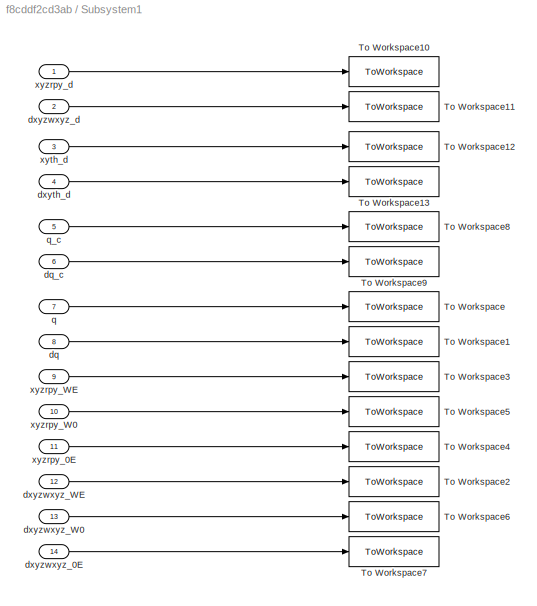
BLOCK [SubSystem] Subsystem1
  Ports = [14]
  RequestExecContextInheritance = off
BLOCK [ToWorkspace] Subsystem1/To Workspace
  FixptAsFi = on
  MaxDataPoints = inf
  Ports = [1]
  SampleTime = -1
  SaveFormat = Timeseries
  VariableName = Q
BLOCK [ToWorkspace] Subsystem1/To Workspace1
  FixptAsFi = on
  MaxDataPoints = inf
  Ports = [1]
  SampleTime = -1
  SaveFormat = Timeseries
  VariableName = dQ
BLOCK [ToWorkspace] Subsystem1/To Workspace10
  FixptAsFi = on
  MaxDataPoints = inf
  Ports = [1]
  SampleTime = -1
  SaveFormat = Timeseries
  VariableName = XYZRPY_d
BLOCK [ToWorkspace] Subsystem1/To Workspace11
  FixptAsFi = on
  MaxDataPoints = inf
  Ports = [1]
  SampleTime = -1
  SaveFormat = Timeseries
  VariableName = dXYZWXYZ_d
BLOCK [ToWorkspace] Subsystem1/To Workspace12
  FixptAsFi = on
  MaxDataPoints = inf
  Ports = [1]
  SampleTime = -1
  SaveFormat = Timeseries
  VariableName = XYTH_d
BLOCK [ToWorkspace] Subsystem1/To Workspace13
  FixptAsFi = on
  MaxDataPoints = inf
  Ports = [1]
  SampleTime = -1
  SaveFormat = Timeseries
  VariableName = dXYTH_d
BLOCK [ToWorkspace] Subsystem1/To Workspace2
  FixptAsFi = on
  MaxDataPoints = inf
  Ports = [1]
  SampleTime = -1
  SaveFormat = Timeseries
  VariableName = dXYZWXYZ_WE
BLOCK [ToWorkspace] Subsystem1/To Workspace3
  FixptAsFi = on
  MaxDataPoints = inf
  Ports = [1]
  SampleTime = -1
  SaveFormat = Timeseries
  VariableName = XYZRPY_WE
BLOCK [ToWorkspace] Subsystem1/To Workspace4
  FixptAsFi = on
  MaxDataPoints = inf
  Ports = [1]
  SampleTime = -1
  SaveFormat = Timeseries
  VariableName = XYZRPY_0E
BLOCK [ToWorkspace] Subsystem1/To Workspace5
  FixptAsFi = on
  MaxDataPoints = inf
  Ports = [1]
  SampleTime = -1
  SaveFormat = Timeseries
  VariableName = XYZRPY_W0
BLOCK [ToWorkspace] Subsystem1/To Workspace6
  FixptAsFi = on
  MaxDataPoints = inf
  Ports = [1]
  SampleTime = -1
  SaveFormat = Timeseries
  VariableName = dXYZWXYZ_W0
BLOCK [ToWorkspace] Subsystem1/To Workspace7
  FixptAsFi = on
  MaxDataPoints = inf
  Ports = [1]
  SampleTime = -1
  SaveFormat = Timeseries
  VariableName = dXYZWXYZ_0E
BLOCK [ToWorkspace] Subsystem1/To Workspace8
  FixptAsFi = on
  MaxDataPoints = inf
  Ports = [1]
  SampleTime = -1
  SaveFormat = Timeseries
  VariableName = Q_c
BLOCK [ToWorkspace] Subsystem1/To Workspace9
  FixptAsFi = on
  MaxDataPoints = inf
  Ports = [1]
  SampleTime = -1
  SaveFormat = Timeseries
  VariableName = dQ_c
BLOCK [Inport] Subsystem1/dq
  Port = 8
BLOCK [Inport] Subsystem1/dq_c
  Port = 6
BLOCK [Inport] Subsystem1/dxyth_d
  Port = 4
BLOCK [Inport] Subsystem1/dxyzwxyz_0E
  Port = 14
BLOCK [Inport] Subsystem1/dxyzwxyz_W0
  Port = 13
BLOCK [Inport] Subsystem1/dxyzwxyz_WE
  Port = 12
BLOCK [Inport] Subsystem1/dxyzwxyz_d
  Port = 2
BLOCK [Inport] Subsystem1/q
  Port = 7
BLOCK [Inport] Subsystem1/q_c
  Port = 5
BLOCK [Inport] Subsystem1/xyth_d
  Port = 3
BLOCK [Inport] Subsystem1/xyzrpy_0E
  Port = 11
BLOCK [Inport] Subsystem1/xyzrpy_W0
  Port = 10
BLOCK [Inport] Subsystem1/xyzrpy_WE
  Port = 9
BLOCK [Inport] Subsystem1/xyzrpy_d
BLOCK [SubSystem] Subsystem3
  Ports = [0, 5]
  RequestExecContextInheritance = off
BLOCK [SubSystem] Subsystem3/MATLAB Function
  ErrorFcn = Stateflow.Translate.translate
  PermitHierarchicalResolution = ExplicitOnly
  Ports = [1, 5]
  RequestExecContextInheritance = off
  SFBlockType = MATLAB Function
  TreatAsAtomicUnit = on
BLOCK [Demux] Subsystem3/MATLAB Function/ Demux 
  Outputs = 1
  Ports = [1, 1]
BLOCK [S-Function] Subsystem3/MATLAB Function/ SFunction 
  EnableBusSupport = on
  FunctionName = sf_sfun
  PortCounts = [1 6]
  Ports = [1, 6]
  SFcnIsStateOwnerBlock = off
  SFunctionDeploymentMode = off
  Tag = Stateflow S-Function 2
BLOCK [Terminator] Subsystem3/MATLAB Function/ Terminator 
BLOCK [Outport] Subsystem3/MATLAB Function/dxyth_d
  Port = 4
BLOCK [Outport] Subsystem3/MATLAB Function/dxyzwxyz_d
  Port = 2
BLOCK [Outport] Subsystem3/MATLAB Function/q_0
  Port = 5
BLOCK [Inport] Subsystem3/MATLAB Function/t
BLOCK [Outport] Subsystem3/MATLAB Function/xyth_d
  Port = 3
BLOCK [Outport] Subsystem3/MATLAB Function/xyzrpy_d
BLOCK [Clock] Subsystem3/clock
  Decimation = 100
  DisplayTime = on
BLOCK [Outport] Subsystem3/dxyth_d
  Port = 4
BLOCK [Outport] Subsystem3/dxyzwxyz_d
  Port = 2
BLOCK [Outport] Subsystem3/q_0
  Port = 5
BLOCK [Outport] Subsystem3/xyth_d
  Port = 3
BLOCK [Outport] Subsystem3/xyzrpy_d
ANNOTATION (root): 控制器模块
ANNOTATION (root): 机器人模型
ANNOTATION (root): 状态监测模块
ANNOTATION (root): 轨迹规划模块
ANNOTATION  /room: 世界坐标系
ANNOTATION  /room: 地面与三个车轮（球）的接触力
LINE  /Demux:1 ->  /Gain:1
LINE  /Demux:2 ->  /Gain1:1
LINE  /Demux:3 ->  /Goto:1
LINE  /Demux:4 ->  /Goto1:1
LINE  /Demux:5 ->  /Goto2:1
LINE  /Demux:6 ->  /Goto3:1
LINE  /Demux:7 ->  /Goto4:1
LINE  /Demux:8 ->  /Goto5:1
LINE  /Demux:9 ->  /Goto6:1
LINE  /From10:1 ->  /Mux:2
LINE  /From11:1 ->  /Mux:3
LINE  /From12:1 ->  /Mux:4
LINE  /From13:1 ->  /Mux:5
LINE  /From14:1 ->  /Mux:6
LINE  /From15:1 ->  /Mux:7
LINE  /From16:1 ->  /Mux:8
LINE  /From17:1 ->  /Mux:9
LINE  /From18:1 ->  /Mux1:2
LINE  /From19:1 ->  /Mux1:3
LINE  /From1:1 ->  /Simulink-PS Converter1:1
LINE  /From20:1 ->  /Mux1:4
LINE  /From21:1 ->  /Mux1:5
LINE  /From22:1 ->  /Mux1:6
LINE  /From23:1 ->  /Mux1:7
LINE  /From24:1 ->  /Mux1:8
LINE  /From25:1 ->  /Mux1:9
LINE  /From26:1 ->  /Mux1:1
LINE  /From27:1 ->  /Mux3:4
LINE  /From28:1 ->  /Mux3:5
LINE  /From29:1 ->  /Mux3:6
LINE  /From2:1 ->  /Simulink-PS Converter2:1
LINE  /From30:1 ->  /Mux3:1
LINE  /From31:1 ->  /Mux3:2
LINE  /From32:1 ->  /Mux3:3
LINE  /From33:1 ->  /Mux2:4
LINE  /From34:1 ->  /Mux2:5
LINE  /From35:1 ->  /Mux2:6
LINE  /From36:1 ->  /MATLAB Function1:2
LINE  /From37:1 ->  /MATLAB Function1:3
LINE  /From38:1 ->  /MATLAB Function1:4
LINE  /From39:1 ->  /MATLAB Function:2
LINE  /From3:1 ->  /Simulink-PS Converter3:1
LINE  /From40:1 ->  /MATLAB Function:3
LINE  /From41:1 ->  /MATLAB Function:4
LINE  /From42:1 ->  /MATLAB Function:1
LINE  /From43:1 ->  /MATLAB Function2:2
LINE  /From44:1 ->  /MATLAB Function1:1
LINE  /From45:1 ->  /MATLAB Function2:3
LINE  /From46:1 ->  /MATLAB Function2:4
LINE  /From47:1 ->  /MATLAB Function2:1
LINE  /From48:1 ->  /Mux2:1
LINE  /From49:1 ->  /Mux2:2
LINE  /From4:1 ->  /Simulink-PS Converter4:1
LINE  /From50:1 ->  /Mux2:3
LINE  /From51:1 ->  /Mux4:4
LINE  /From52:1 ->  /Mux4:5
LINE  /From53:1 ->  /Mux4:6
LINE  /From54:1 ->  /Mux4:1
LINE  /From55:1 ->  /Mux4:2
LINE  /From56:1 ->  /Mux4:3
LINE  /From5:1 ->  /Simulink-PS Converter5:1
LINE  /From6:1 ->  /Simulink-PS Converter6:1
LINE  /From7:1 ->  /Simulink-PS Converter7:1
LINE  /From8:1 ->  /Simulink-PS Converter8:1
LINE  /From9:1 ->  /Mux:1
LINE  /From:1 ->  /Simulink-PS Converter:1
LINE  /Gain1:1 ->  /Goto8:1
LINE  /Gain:1 ->  /Goto7:1
LINE  /MATLAB Function1:1 ->  /xyzrpy_W0:1
LINE  /MATLAB Function2:1 ->  /xyzrpy_0E:1
LINE  /MATLAB Function:1 ->  /xyzrpy_WE:1
LINE  /Mux1:1 ->  /dq:1
LINE  /Mux2:1 ->  /dxyzwxyz_WE:1
LINE  /Mux3:1 ->  /dxyzwxyz_W0:1
LINE  /Mux4:1 ->  /dxyzwxyz_0E:1
LINE  /Mux:1 ->  /q:1
LINE  /PS-Simulink Converter10:1 ->  /Goto19:1
LINE  /PS-Simulink Converter11:1 ->  /Goto21:1
LINE  /PS-Simulink Converter12:1 ->  /Goto20:1
LINE  /PS-Simulink Converter13:1 ->  /Goto23:1
LINE  /PS-Simulink Converter14:1 ->  /Goto22:1
LINE  /PS-Simulink Converter15:1 ->  /Goto25:1
LINE  /PS-Simulink Converter16:1 ->  /Goto24:1
LINE  /PS-Simulink Converter17:1 ->  /Goto27:1
LINE  /PS-Simulink Converter18:1 ->  /Goto26:1
LINE  /PS-Simulink Converter19:1 ->  /Goto29:1
LINE  /PS-Simulink Converter1:1 ->  /Goto17:1
LINE  /PS-Simulink Converter20:1 ->  /Goto28:1
LINE  /PS-Simulink Converter21:1 ->  /Goto31:1
LINE  /PS-Simulink Converter22:1 ->  /Goto30:1
LINE  /PS-Simulink Converter23:1 ->  /Goto33:1
LINE  /PS-Simulink Converter24:1 ->  /Goto32:1
LINE  /PS-Simulink Converter25:1 ->  /Goto35:1
LINE  /PS-Simulink Converter26:1 ->  /Goto34:1
LINE  /PS-Simulink Converter27:1 ->  /Goto36:1
LINE  /PS-Simulink Converter28:1 ->  /Goto37:1
LINE  /PS-Simulink Converter29:1 ->  /Goto38:1
LINE  /PS-Simulink Converter2:1 ->  /Goto9:1
LINE  /PS-Simulink Converter30:1 ->  /Goto39:1
LINE  /PS-Simulink Converter31:1 ->  /Goto40:1
LINE  /PS-Simulink Converter32:1 ->  /Goto41:1
LINE  /PS-Simulink Converter33:1 ->  /Goto42:1
LINE  /PS-Simulink Converter34:1 ->  /Goto43:1
LINE  /PS-Simulink Converter35:1 ->  /Goto44:1
LINE  /PS-Simulink Converter36:1 ->  /Goto45:1
LINE  /PS-Simulink Converter37:1 ->  /Goto46:1
LINE  /PS-Simulink Converter38:1 ->  /Goto47:1
LINE  /PS-Simulink Converter39:1 ->  /Goto48:1
LINE  /PS-Simulink Converter3:1 ->  /Goto10:1
LINE  /PS-Simulink Converter40:1 ->  /Goto49:1
LINE  /PS-Simulink Converter41:1 ->  /Goto50:1
LINE  /PS-Simulink Converter42:1 ->  /Goto51:1
LINE  /PS-Simulink Converter43:1 ->  /Goto52:1
LINE  /PS-Simulink Converter44:1 ->  /Goto53:1
LINE  /PS-Simulink Converter45:1 ->  /Goto54:1
LINE  /PS-Simulink Converter46:1 ->  /Goto55:1
LINE  /PS-Simulink Converter47:1 ->  /Goto56:1
LINE  /PS-Simulink Converter4:1 ->  /Goto11:1
LINE  /PS-Simulink Converter5:1 ->  /Goto12:1
LINE  /PS-Simulink Converter6:1 ->  /Goto13:1
LINE  /PS-Simulink Converter7:1 ->  /Goto14:1
LINE  /PS-Simulink Converter8:1 ->  /Goto15:1
LINE  /PS-Simulink Converter9:1 ->  /Goto18:1
LINE  /PS-Simulink Converter:1 ->  /Goto16:1
LINE  /ball/Clock:1 ->  /ball/MATLAB Function:1
LINE  /ball/Constant:1 ->  /ball/MATLAB Function:2
LINE  /ball/Demux:1 ->  /ball/Simulink-PS Converter:1
LINE  /ball/Demux:2 ->  /ball/Simulink-PS Converter1:1
LINE  /ball/Demux:3 ->  /ball/Simulink-PS Converter2:1
LINE  /ball/MATLAB Function:1 ->  /ball/Demux:1
LINE  /q_c:1 ->  /Demux:1
NET  :1 -> Subsystem1:7, Subsystem:6
NET  :2 -> Subsystem1:8, Subsystem:7
NET  :3 -> Subsystem1:9, Subsystem:8
NET  :4 -> Subsystem1:10, Subsystem:10
NET  :5 -> Subsystem1:11, Subsystem:12
NET  :6 -> Subsystem1:12, Subsystem:9
NET  :7 -> Subsystem1:13, Subsystem:11
NET  :8 -> Subsystem1:14, Subsystem:13
LINE Subsystem/Integrator:1 -> Subsystem/Plus:2
NET Subsystem/MATLAB Function2:1 -> Subsystem/Integrator:1, Subsystem/dq_c:1
LINE Subsystem/Plus:1 -> Subsystem/q_c:1
LINE Subsystem/dxyth_d:1 -> Subsystem/MATLAB Function2:4
LINE Subsystem/dxyzwxyz_d:1 -> Subsystem/MATLAB Function2:2
LINE Subsystem/q:1 -> Subsystem/MATLAB Function2:5
LINE Subsystem/q_0:1 -> Subsystem/Plus:1
LINE Subsystem/xyth_d:1 -> Subsystem/MATLAB Function2:3
LINE Subsystem/xyzrpy_0E:1 -> Subsystem/MATLAB Function2:8
LINE Subsystem/xyzrpy_W0:1 -> Subsystem/MATLAB Function2:7
LINE Subsystem/xyzrpy_WE:1 -> Subsystem/MATLAB Function2:6
LINE Subsystem/xyzrpy_d:1 -> Subsystem/MATLAB Function2:1
LINE Subsystem1/dq:1 -> Subsystem1/To Workspace1:1
LINE Subsystem1/dq_c:1 -> Subsystem1/To Workspace9:1
LINE Subsystem1/dxyth_d:1 -> Subsystem1/To Workspace13:1
LINE Subsystem1/dxyzwxyz_0E:1 -> Subsystem1/To Workspace7:1
LINE Subsystem1/dxyzwxyz_W0:1 -> Subsystem1/To Workspace6:1
LINE Subsystem1/dxyzwxyz_WE:1 -> Subsystem1/To Workspace2:1
LINE Subsystem1/dxyzwxyz_d:1 -> Subsystem1/To Workspace11:1
LINE Subsystem1/q:1 -> Subsystem1/To Workspace:1
LINE Subsystem1/q_c:1 -> Subsystem1/To Workspace8:1
LINE Subsystem1/xyth_d:1 -> Subsystem1/To Workspace12:1
LINE Subsystem1/xyzrpy_0E:1 -> Subsystem1/To Workspace4:1
LINE Subsystem1/xyzrpy_W0:1 -> Subsystem1/To Workspace5:1
LINE Subsystem1/xyzrpy_WE:1 -> Subsystem1/To Workspace3:1
LINE Subsystem1/xyzrpy_d:1 -> Subsystem1/To Workspace10:1
LINE Subsystem3/MATLAB Function:1 -> Subsystem3/xyzrpy_d:1
LINE Subsystem3/MATLAB Function:2 -> Subsystem3/dxyzwxyz_d:1
LINE Subsystem3/MATLAB Function:3 -> Subsystem3/xyth_d:1
LINE Subsystem3/MATLAB Function:4 -> Subsystem3/dxyth_d:1
LINE Subsystem3/MATLAB Function:5 -> Subsystem3/q_0:1
LINE Subsystem3/clock:1 -> Subsystem3/MATLAB Function:1
NET Subsystem3:1 -> Subsystem1:1, Subsystem:1
NET Subsystem3:2 -> Subsystem1:2, Subsystem:2
NET Subsystem3:3 -> Subsystem1:3, Subsystem:3
NET Subsystem3:4 -> Subsystem1:4, Subsystem:4
LINE Subsystem3:5 -> Subsystem:5
NET Subsystem:1 ->  :1, Subsystem1:5
LINE Subsystem:2 -> Subsystem1:6
PLINE  /6-DOF Joint:LConn1 --  /world-base:RConn1
PNET net1:  /6-DOF Joint:RConn1 --  /Frame_Base:LConn1 --  /world-mobile-Transform1:LConn1 --  /world-mobile-Transform:RConn1
PLINE  /Frame_Base/CH:RConn1 --  /Frame_Base/Visual:LConn1
PLINE  /Frame_Base/F1:RConn1 --  /Frame_Base/Joint1_AxisTransform:RConn1
PLINE  /Frame_Base/F2:RConn1 --  /Frame_Base/Joint_Rear1_AxisTransform:RConn1
PLINE  /Frame_Base/F3:RConn1 --  /Frame_Base/Joint_Wheel_Left_AxisTransform:RConn1
PLINE  /Frame_Base/F4:RConn1 --  /Frame_Base/Joint_Wheel_Right_AxisTransform:RConn1
PNET net2:  /Frame_Base/F:RConn1 --  /Frame_Base/InertiaOriginTransform:LConn1 --  /Frame_Base/Joint1_OriginTransform:LConn1 --  /Frame_Base/Joint_Rear1_OriginTransform:LConn1 --  /Frame_Base/Joint_Wheel_Left_OriginTransform:LConn1 --  /Frame_Base/Joint_Wheel_Right_OriginTransform:LConn1 --  /Frame_Base/ReferenceFrame:RConn1 --  /Frame_Base/VisualOriginTransform:LConn1
PLINE  /Frame_Base/Inertia:RConn1 --  /Frame_Base/InertiaOriginTransform:RConn1
PLINE  /Frame_Base/Joint1_AxisTransform:LConn1 --  /Frame_Base/Joint1_OriginTransform:RConn1
PLINE  /Frame_Base/Joint_Rear1_AxisTransform:LConn1 --  /Frame_Base/Joint_Rear1_OriginTransform:RConn1
PLINE  /Frame_Base/Joint_Wheel_Left_AxisTransform:LConn1 --  /Frame_Base/Joint_Wheel_Left_OriginTransform:RConn1
PLINE  /Frame_Base/Joint_Wheel_Right_AxisTransform:LConn1 --  /Frame_Base/Joint_Wheel_Right_OriginTransform:RConn1
PLINE  /Frame_Base/Visual:RConn1 --  /Frame_Base/VisualOriginTransform:RConn1
PLINE  /Frame_Base:LConn2 --  /Joint_Wheel_Right1:LConn1
PLINE  /Frame_Base:LConn3 --  /Joint_Wheel_Left1:LConn1
PLINE  /Frame_Base:LConn4 --  /Joint_Rear3:LConn1
PLINE  /Frame_Base:RConn1 --  /Joint8:LConn1
PLINE  /Joint10:LConn1 --  /Link2:RConn1
PLINE  /Joint10:LConn2 --  /Simulink-PS Converter2:RConn1
PLINE  /Joint10:RConn1 --  /Link3:LConn1
PLINE  /Joint10:RConn2 --  /PS-Simulink Converter4:LConn1
PLINE  /Joint10:RConn3 --  /PS-Simulink Converter18:LConn1
PLINE  /Joint11:LConn1 --  /Link3:RConn1
PLINE  /Joint11:LConn2 --  /Simulink-PS Converter3:RConn1
PLINE  /Joint11:RConn1 --  /Link4:LConn1
PLINE  /Joint11:RConn2 --  /PS-Simulink Converter5:LConn1
PLINE  /Joint11:RConn3 --  /PS-Simulink Converter16:LConn1
PLINE  /Joint12:LConn1 --  /Link4:RConn1
PLINE  /Joint12:LConn2 --  /Simulink-PS Converter4:RConn1
PLINE  /Joint12:RConn1 --  /Link5:LConn1
PLINE  /Joint12:RConn2 --  /PS-Simulink Converter6:LConn1
PLINE  /Joint12:RConn3 --  /PS-Simulink Converter14:LConn1
PLINE  /Joint13:LConn1 --  /Link5:RConn1
PLINE  /Joint13:LConn2 --  /Simulink-PS Converter5:RConn1
PLINE  /Joint13:RConn1 --  /Link6:LConn1
PLINE  /Joint13:RConn2 --  /PS-Simulink Converter7:LConn1
PLINE  /Joint13:RConn3 --  /PS-Simulink Converter12:LConn1
PLINE  /Joint14:LConn1 --  /Link6:RConn1
PLINE  /Joint14:LConn2 --  /Simulink-PS Converter6:RConn1
PLINE  /Joint14:RConn1 --  /Link7:LConn1
PLINE  /Joint14:RConn2 --  /PS-Simulink Converter8:LConn1
PLINE  /Joint14:RConn3 --  /PS-Simulink Converter9:LConn1
PLINE  /Joint7_End-box:LConn1 --  /Link7:RConn1
PNET net3:  /Joint7_End-box:RConn1 --  /end-box:LConn1 --  /world-end-Transform:RConn1 --  /world-mobile-Transform1:RConn1
PLINE  /Joint8:LConn2 --  /Simulink-PS Converter:RConn1
PLINE  /Joint8:RConn1 --  /Link1:LConn1
PLINE  /Joint8:RConn2 --  /PS-Simulink Converter2:LConn1
PLINE  /Joint8:RConn3 --  /PS-Simulink Converter22:LConn1
PLINE  /Joint9:LConn1 --  /Link1:RConn1
PLINE  /Joint9:LConn2 --  /Simulink-PS Converter1:RConn1
PLINE  /Joint9:RConn1 --  /Link2:LConn1
PLINE  /Joint9:RConn2 --  /PS-Simulink Converter3:LConn1
PLINE  /Joint9:RConn3 --  /PS-Simulink Converter20:LConn1
PLINE  /Joint_Rear3:RConn1 --  /Link_Rear1:LConn1
PLINE  /Joint_Rear4:LConn1 --  /Link_Rear1:RConn1
PLINE  /Joint_Rear4:RConn1 --  /Link_Rear2:LConn1
PLINE  /Joint_Wheel_Left1:LConn2 --  /Simulink-PS Converter7:RConn1
PLINE  /Joint_Wheel_Left1:RConn1 --  /Link_Wheel_Left:LConn1
PLINE  /Joint_Wheel_Left1:RConn2 --  /PS-Simulink Converter:LConn1
PLINE  /Joint_Wheel_Left1:RConn3 --  /PS-Simulink Converter23:LConn1
PLINE  /Joint_Wheel_Right1:LConn2 --  /Simulink-PS Converter8:RConn1
PLINE  /Joint_Wheel_Right1:RConn1 --  /Link_Wheel_Right:LConn1
PLINE  /Joint_Wheel_Right1:RConn2 --  /PS-Simulink Converter1:LConn1
PLINE  /Joint_Wheel_Right1:RConn3 --  /PS-Simulink Converter25:LConn1
PLINE  /Link1/CH:RConn1 --  /Link1/Visual:LConn1
PLINE  /Link1/F1:RConn1 --  /Link1/Joint2_AxisTransform:RConn1
PLINE  /Link1/F:RConn1 --  /Link1/Joint1_AxisInvTransform:RConn1
PLINE  /Link1/Inertia:RConn1 --  /Link1/InertiaOriginTransform:RConn1
PNET net4:  /Link1/InertiaOriginTransform:LConn1 --  /Link1/Joint1_AxisInvTransform:LConn1 --  /Link1/Joint2_OriginTransform:LConn1 --  /Link1/ReferenceFrame:RConn1 --  /Link1/VisualOriginTransform:LConn1
PLINE  /Link1/Joint2_AxisTransform:LConn1 --  /Link1/Joint2_OriginTransform:RConn1
PLINE  /Link1/Visual:RConn1 --  /Link1/VisualOriginTransform:RConn1
PLINE  /Link2/CH:RConn1 --  /Link2/Visual:LConn1
PLINE  /Link2/F1:RConn1 --  /Link2/Joint3_AxisTransform:RConn1
PLINE  /Link2/F:RConn1 --  /Link2/Joint2_AxisInvTransform:RConn1
PLINE  /Link2/Inertia:RConn1 --  /Link2/InertiaOriginTransform:RConn1
PNET net5:  /Link2/InertiaOriginTransform:LConn1 --  /Link2/Joint2_AxisInvTransform:LConn1 --  /Link2/Joint3_OriginTransform:LConn1 --  /Link2/ReferenceFrame:RConn1 --  /Link2/VisualOriginTransform:LConn1
PLINE  /Link2/Joint3_AxisTransform:LConn1 --  /Link2/Joint3_OriginTransform:RConn1
PLINE  /Link2/Visual:RConn1 --  /Link2/VisualOriginTransform:RConn1
PLINE  /Link3/CH:RConn1 --  /Link3/Visual:LConn1
PLINE  /Link3/F1:RConn1 --  /Link3/Joint4_AxisTransform:RConn1
PLINE  /Link3/F:RConn1 --  /Link3/Joint3_AxisInvTransform:RConn1
PLINE  /Link3/Inertia:RConn1 --  /Link3/InertiaOriginTransform:RConn1
PNET net6:  /Link3/InertiaOriginTransform:LConn1 --  /Link3/Joint3_AxisInvTransform:LConn1 --  /Link3/Joint4_OriginTransform:LConn1 --  /Link3/ReferenceFrame:RConn1 --  /Link3/VisualOriginTransform:LConn1
PLINE  /Link3/Joint4_AxisTransform:LConn1 --  /Link3/Joint4_OriginTransform:RConn1
PLINE  /Link3/Visual:RConn1 --  /Link3/VisualOriginTransform:RConn1
PLINE  /Link4/CH:RConn1 --  /Link4/Visual:LConn1
PLINE  /Link4/F1:RConn1 --  /Link4/Joint5_AxisTransform:RConn1
PLINE  /Link4/F:RConn1 --  /Link4/Joint4_AxisInvTransform:RConn1
PLINE  /Link4/Inertia:RConn1 --  /Link4/InertiaOriginTransform:RConn1
PNET net7:  /Link4/InertiaOriginTransform:LConn1 --  /Link4/Joint4_AxisInvTransform:LConn1 --  /Link4/Joint5_OriginTransform:LConn1 --  /Link4/ReferenceFrame:RConn1 --  /Link4/VisualOriginTransform:LConn1
PLINE  /Link4/Joint5_AxisTransform:LConn1 --  /Link4/Joint5_OriginTransform:RConn1
PLINE  /Link4/Visual:RConn1 --  /Link4/VisualOriginTransform:RConn1
PLINE  /Link5/CH:RConn1 --  /Link5/Visual:LConn1
PLINE  /Link5/F1:RConn1 --  /Link5/Joint6_AxisTransform:RConn1
PLINE  /Link5/F:RConn1 --  /Link5/Joint5_AxisInvTransform:RConn1
PLINE  /Link5/Inertia:RConn1 --  /Link5/InertiaOriginTransform:RConn1
PNET net8:  /Link5/InertiaOriginTransform:LConn1 --  /Link5/Joint5_AxisInvTransform:LConn1 --  /Link5/Joint6_OriginTransform:LConn1 --  /Link5/ReferenceFrame:RConn1 --  /Link5/VisualOriginTransform:LConn1
PLINE  /Link5/Joint6_AxisTransform:LConn1 --  /Link5/Joint6_OriginTransform:RConn1
PLINE  /Link5/Visual:RConn1 --  /Link5/VisualOriginTransform:RConn1
PLINE  /Link6/CH:RConn1 --  /Link6/Visual:LConn1
PLINE  /Link6/F1:RConn1 --  /Link6/Joint7_AxisTransform:RConn1
PLINE  /Link6/F:RConn1 --  /Link6/Joint6_AxisInvTransform:RConn1
PLINE  /Link6/Inertia:RConn1 --  /Link6/InertiaOriginTransform:RConn1
PNET net9:  /Link6/InertiaOriginTransform:LConn1 --  /Link6/Joint6_AxisInvTransform:LConn1 --  /Link6/Joint7_OriginTransform:LConn1 --  /Link6/ReferenceFrame:RConn1 --  /Link6/VisualOriginTransform:LConn1
PLINE  /Link6/Joint7_AxisTransform:LConn1 --  /Link6/Joint7_OriginTransform:RConn1
PLINE  /Link6/Visual:RConn1 --  /Link6/VisualOriginTransform:RConn1
PLINE  /Link7/CH:RConn1 --  /Link7/Visual:LConn1
PNET net10:  /Link7/F1:RConn1 --  /Link7/F:RConn1 --  /Link7/Joint7_AxisInvTransform:RConn1
PLINE  /Link7/Inertia:RConn1 --  /Link7/InertiaOriginTransform:RConn1
PNET net11:  /Link7/InertiaOriginTransform:LConn1 --  /Link7/Joint7_AxisInvTransform:LConn1 --  /Link7/ReferenceFrame:RConn1 --  /Link7/VisualOriginTransform:LConn1
PLINE  /Link7/Visual:RConn1 --  /Link7/VisualOriginTransform:RConn1
PLINE  /Link_Rear1/CH:RConn1 --  /Link_Rear1/Visual:LConn1
PLINE  /Link_Rear1/F1:RConn1 --  /Link_Rear1/Joint_Rear2_AxisTransform:RConn1
PLINE  /Link_Rear1/F:RConn1 --  /Link_Rear1/Joint_Rear1_AxisInvTransform:RConn1
PLINE  /Link_Rear1/Inertia:RConn1 --  /Link_Rear1/InertiaOriginTransform:RConn1
PNET net12:  /Link_Rear1/InertiaOriginTransform:LConn1 --  /Link_Rear1/Joint_Rear1_AxisInvTransform:LConn1 --  /Link_Rear1/Joint_Rear2_OriginTransform:LConn1 --  /Link_Rear1/ReferenceFrame:RConn1 --  /Link_Rear1/VisualOriginTransform:LConn1
PLINE  /Link_Rear1/Joint_Rear2_AxisTransform:LConn1 --  /Link_Rear1/Joint_Rear2_OriginTransform:RConn1
PLINE  /Link_Rear1/Visual:RConn1 --  /Link_Rear1/VisualOriginTransform:RConn1
PLINE  /Link_Rear2/CH:RConn1 --  /Link_Rear2/Spherical Solid:LConn1
PLINE  /Link_Rear2/F:RConn1 --  /Link_Rear2/Joint_Rear2_AxisInvTransform:RConn1
PLINE  /Link_Rear2/Inertia:RConn1 --  /Link_Rear2/InertiaOriginTransform:RConn1
PNET net13:  /Link_Rear2/InertiaOriginTransform:LConn1 --  /Link_Rear2/Joint_Rear2_AxisInvTransform:LConn1 --  /Link_Rear2/ReferenceFrame:RConn1 --  /Link_Rear2/VisualOriginTransform:LConn1
PNET net14:  /Link_Rear2/Spherical Solid:RConn1 --  /Link_Rear2/Visual:RConn1 --  /Link_Rear2/VisualOriginTransform:RConn1
PLINE  /Link_Rear2:RConn1 --  /Spatial Contact Force2:RConn1
PLINE  /Link_Wheel_Left/CH:RConn1 --  /Link_Wheel_Left/Spherical Solid:LConn1
PLINE  /Link_Wheel_Left/F:RConn1 --  /Link_Wheel_Left/Joint_Wheel_Left_AxisInvTransform:RConn1
PLINE  /Link_Wheel_Left/Inertia:RConn1 --  /Link_Wheel_Left/InertiaOriginTransform:RConn1
PNET net15:  /Link_Wheel_Left/InertiaOriginTransform:LConn1 --  /Link_Wheel_Left/Joint_Wheel_Left_AxisInvTransform:LConn1 --  /Link_Wheel_Left/ReferenceFrame:RConn1 --  /Link_Wheel_Left/VisualOriginTransform:LConn1
PNET net16:  /Link_Wheel_Left/Spherical Solid:RConn1 --  /Link_Wheel_Left/VisualOriginTransform1:LConn1 --  /Link_Wheel_Left/VisualOriginTransform:RConn1
PLINE  /Link_Wheel_Left/Visual:RConn1 --  /Link_Wheel_Left/VisualOriginTransform1:RConn1
PLINE  /Link_Wheel_Left:RConn1 --  /Spatial Contact Force1:RConn1
PLINE  /Link_Wheel_Right/CH:RConn1 --  /Link_Wheel_Right/Spherical Solid:LConn1
PLINE  /Link_Wheel_Right/F:RConn1 --  /Link_Wheel_Right/Joint_Wheel_Right_AxisInvTransform:RConn1
PLINE  /Link_Wheel_Right/Inertia:RConn1 --  /Link_Wheel_Right/InertiaOriginTransform:RConn1
PNET net17:  /Link_Wheel_Right/InertiaOriginTransform:LConn1 --  /Link_Wheel_Right/Joint_Wheel_Right_AxisInvTransform:LConn1 --  /Link_Wheel_Right/ReferenceFrame:RConn1 --  /Link_Wheel_Right/VisualOriginTransform:LConn1
PNET net18:  /Link_Wheel_Right/Spherical Solid:RConn1 --  /Link_Wheel_Right/VisualOriginTransform1:LConn1 --  /Link_Wheel_Right/VisualOriginTransform:RConn1
PLINE  /Link_Wheel_Right/Visual:RConn1 --  /Link_Wheel_Right/VisualOriginTransform1:RConn1
PLINE  /Link_Wheel_Right:RConn1 --  /Spatial Contact Force:RConn1
PNET net19:  /MechanismConfiguration1:RConn1 --  /Solver Configuration1:RConn1 --  /World1:RConn1 --  /ball:LConn1 --  /room:RConn1 --  /world-base:LConn1 --  /world-end-Transform:LConn1 --  /world-mobile-Transform:LConn1
PLINE  /PS-Simulink Converter10:LConn1 --  /world-mobile-Transform:RConn3
PLINE  /PS-Simulink Converter11:LConn1 --  /world-mobile-Transform:RConn4
PLINE  /PS-Simulink Converter13:LConn1 --  /world-mobile-Transform:RConn5
PLINE  /PS-Simulink Converter15:LConn1 --  /world-mobile-Transform:RConn9
PLINE  /PS-Simulink Converter17:LConn1 --  /world-mobile-Transform:RConn10
PLINE  /PS-Simulink Converter19:LConn1 --  /world-mobile-Transform:RConn11
PLINE  /PS-Simulink Converter21:LConn1 --  /world-end-Transform:RConn6
PLINE  /PS-Simulink Converter24:LConn1 --  /world-end-Transform:RConn7
PLINE  /PS-Simulink Converter26:LConn1 --  /world-end-Transform:RConn8
PLINE  /PS-Simulink Converter27:LConn1 --  /world-mobile-Transform:RConn6
PLINE  /PS-Simulink Converter28:LConn1 --  /world-mobile-Transform:RConn7
PLINE  /PS-Simulink Converter29:LConn1 --  /world-mobile-Transform:RConn8
PLINE  /PS-Simulink Converter30:LConn1 --  /world-mobile-Transform:RConn2
PLINE  /PS-Simulink Converter31:LConn1 --  /world-end-Transform:RConn3
PLINE  /PS-Simulink Converter32:LConn1 --  /world-end-Transform:RConn4
PLINE  /PS-Simulink Converter33:LConn1 --  /world-end-Transform:RConn5
PLINE  /PS-Simulink Converter34:LConn1 --  /world-end-Transform:RConn2
PLINE  /PS-Simulink Converter35:LConn1 --  /world-mobile-Transform1:RConn3
PLINE  /PS-Simulink Converter36:LConn1 --  /world-mobile-Transform1:RConn4
PLINE  /PS-Simulink Converter37:LConn1 --  /world-mobile-Transform1:RConn5
PLINE  /PS-Simulink Converter38:LConn1 --  /world-mobile-Transform1:RConn2
PLINE  /PS-Simulink Converter39:LConn1 --  /world-end-Transform:RConn9
PLINE  /PS-Simulink Converter40:LConn1 --  /world-end-Transform:RConn10
PLINE  /PS-Simulink Converter41:LConn1 --  /world-end-Transform:RConn11
PLINE  /PS-Simulink Converter42:LConn1 --  /world-mobile-Transform1:RConn6
PLINE  /PS-Simulink Converter43:LConn1 --  /world-mobile-Transform1:RConn7
PLINE  /PS-Simulink Converter44:LConn1 --  /world-mobile-Transform1:RConn8
PLINE  /PS-Simulink Converter45:LConn1 --  /world-mobile-Transform1:RConn9
PLINE  /PS-Simulink Converter46:LConn1 --  /world-mobile-Transform1:RConn10
PLINE  /PS-Simulink Converter47:LConn1 --  /world-mobile-Transform1:RConn11
PNET net20:  /Spatial Contact Force1:LConn1 --  /Spatial Contact Force2:LConn1 --  /Spatial Contact Force:LConn1 --  /room:LConn1
PLINE  /ball/Simulink-PS Converter1:RConn1 --  /ball/ball_motion:LConn3
PLINE  /ball/Simulink-PS Converter2:RConn1 --  /ball/ball_motion:LConn4
PLINE  /ball/Simulink-PS Converter:RConn1 --  /ball/ball_motion:LConn2
PLINE  /ball/ball:RConn1 --  /ball/ball_motion:RConn1
PLINE  /ball/ball_motion:LConn1 --  /ball/world:RConn1
PLINE  /end-box/CH:RConn1 --  /end-box/Visual:RConn1
PNET net21:  /end-box/F:RConn1 --  /end-box/InertiaOriginTransform:LConn1 --  /end-box/ReferenceFrame:RConn1 --  /end-box/VisualTransform:LConn1
PLINE  /end-box/Inertia:RConn1 --  /end-box/InertiaOriginTransform:RConn1
PLINE  /end-box/Visual:LConn1 --  /end-box/VisualTransform:RConn1
PLINE  /room/B:RConn1 --  /room/world-ground:LConn1
PLINE  /room/F1:RConn1 --  /room/ground:LConn1
PNET net22:  /room/ReferenceFrame:RConn1 --  /room/ground:RConn1 --  /room/world-ground:RConn1 --  /room/world-room:LConn1
PLINE  /room/Visual:RConn1 --  /room/world-room:RConn1
note: NET lines group one-source signal fan-out (src -> all destinations, sorted); 1:1 wires keep LINE; PNET lines group multi-terminal physical nets as a canonical sorted terminal list (undirected conserving connections); 2-terminal nets keep the pairwise PLINE form
CHART  /ball/MATLAB Function states=1 transitions=1
  STATE_LABEL 'eML_blk_kernel()'
  STATE_LABEL 'SCRIPT:\nfunction xyz_d  = xyz_ball(t,T)\n%  xyz_d  = xyz_ball(t,T)  生成球的轨迹\n        p_e=[\n            0.744358653349698 0.114296171343550 0.763038394397254;\n            4   0   0.8;\n            6   2   0.2;\n            7.7 4   0.8;\n            8   5   0.8;\n            8.3 6   0.8;\n            9.2 7   0.8;\n            9.5 8.6 0.6;\n            9   9   0.2;\n            8.5 9.5 0.6;\n            7   9   ...<+1484ch>'
CHART Subsystem3/MATLAB Function states=1 transitions=1
  STATE_LABEL 'eML_blk_kernel()'
  STATE_LABEL 'SCRIPT:\nfunction [xyzrpy_d,dxyzwxyz_d,xyth_d,dxyth_d,q_0] = planning(t)\n%% [xyzrpy_d,dxyzwxyz_d,xyth_d,dxyth_d] = planning(t)  计算t时刻末端和车（基座）的笛卡尔轨迹点\n%  t:时刻\n%    xyzrpy_d:末端位置        xyth_d:车位置\n%  dxyzwxyz_d:末端速度       dxyth_d:车速度\n%  q_0：0时刻关节角\n\n\nselect=6; % 选择轨迹点\nT=350; % 仿真周期\n\nswitch select\n\n    case 1\n        [xyzrpy_d,dxyzwxyz_d,xyth_d,dxyth_d,q_0] = traj_plan_ee_circle(t,T);%末端走圆\n        \n    ...<+575ch>'
CHART  /MATLAB Function states=1 transitions=1
  STATE_LABEL 'eML_blk_kernel()'
  STATE_LABEL 'SCRIPT:\nfunction xyzrpy = xyzR2xyzrpy(x,y,z,R)\n\nif abs(R(3 ,1) - 1.0) < 1.0e-15   % singularity\n    a = 0.0;\n    b = -pi / 2.0;\n    c = atan2(-R(1, 2), -R(1, 3));\nelseif abs(R(3, 1) + 1.0) < 1.0e-15   % singularity\n    a = 0.0;\n    b = pi / 2.0;\n    c = -atan2(R(1, 2), R(1, 3));\nelse\n    a = atan2(R(3, 2), R(3, 3));\n    c = atan2(R(2, 1), R(1, 1));\n    %     a = atan2(-R(3, 2), -R(3, 3));  %a另一个解\n...<+274ch>'
CHART  /MATLAB Function1 states=1 transitions=1
  STATE_LABEL 'eML_blk_kernel()'
  STATE_LABEL 'SCRIPT:\nfunction xyzrpy = xyzR2xyzrpy(x,y,z,R)\n\nif abs(R(3 ,1) - 1.0) < 1.0e-15   % singularity\n    a = 0.0;\n    b = -pi / 2.0;\n    c = atan2(-R(1, 2), -R(1, 3));\nelseif abs(R(3, 1) + 1.0) < 1.0e-15   % singularity\n    a = 0.0;\n    b = pi / 2.0;\n    c = -atan2(R(1, 2), R(1, 3));\nelse\n    a = atan2(R(3, 2), R(3, 3));\n    c = atan2(R(2, 1), R(1, 1));\n    %     a = atan2(-R(3, 2), -R(3, 3));  %a另一个解\n...<+275ch>'
CHART  /MATLAB Function2 states=1 transitions=1
  STATE_LABEL 'eML_blk_kernel()'
  STATE_LABEL 'SCRIPT:\nfunction xyzrpy = xyzR2xyzrpy(x,y,z,R)\n\n\nif abs(R(3 ,1) - 1.0) < 1.0e-15   % singularity\n    a = 0.0;\n    b = -pi / 2.0;\n    c = atan2(-R(1, 2), -R(1, 3));\nelseif abs(R(3, 1) + 1.0) < 1.0e-15   % singularity\n    a = 0.0;\n    b = pi / 2.0;\n    c = -atan2(R(1, 2), R(1, 3));\nelse\n    a = atan2(R(3, 2), R(3, 3));\n    c = atan2(R(2, 1), R(1, 1));\n    %     a = atan2(-R(3, 2), -R(3, 3));  %a另一个解...<+275ch>'
CHART Subsystem/MATLAB Function2 states=1 transitions=1
  STATE_LABEL 'eML_blk_kernel()'
  STATE_LABEL 'SCRIPT:\nfunction dq_c= WMM_control(xyzrpy_d,dxyzwxyz_d,xyth_d,dxyth_d,q,xyzrpy_WE,xyzrpy_W0,xyzrpy_0E)\n%% dq_c= WMM_controller(xyzrpy_d,dxyzwxyz_d,xyth_d,dxyth_d,q,xyzrpy_WE,xyzrpy_W0,xyzrpy_0E)\n% 计算用于控制WMM的dq信号\n\n% xyzrpy_d   ：规划的末端轨迹\n% dxyzwxyz_d ：规划的末端速度\n%  xyth_d    ：规划的车轨迹\n%  dxyth_d   ：规划的车速度\n%    q       ：实际运动的关节角\n% xyzrpy_WE  ：世界系下臂末端的位姿\n% xyzrpy_W0  ：世界系下车基座的位姿\n% xyzrpy_0E  ：基座系下臂末端的位姿\n\n% ...<+2162ch>'
CHART  states=0 transitions=0
CHART  states=0 transitions=0
CHART  states=0 transitions=0
CHART  states=0 transitions=0
CHART  states=0 transitions=0
CHART  states=0 transitions=0
